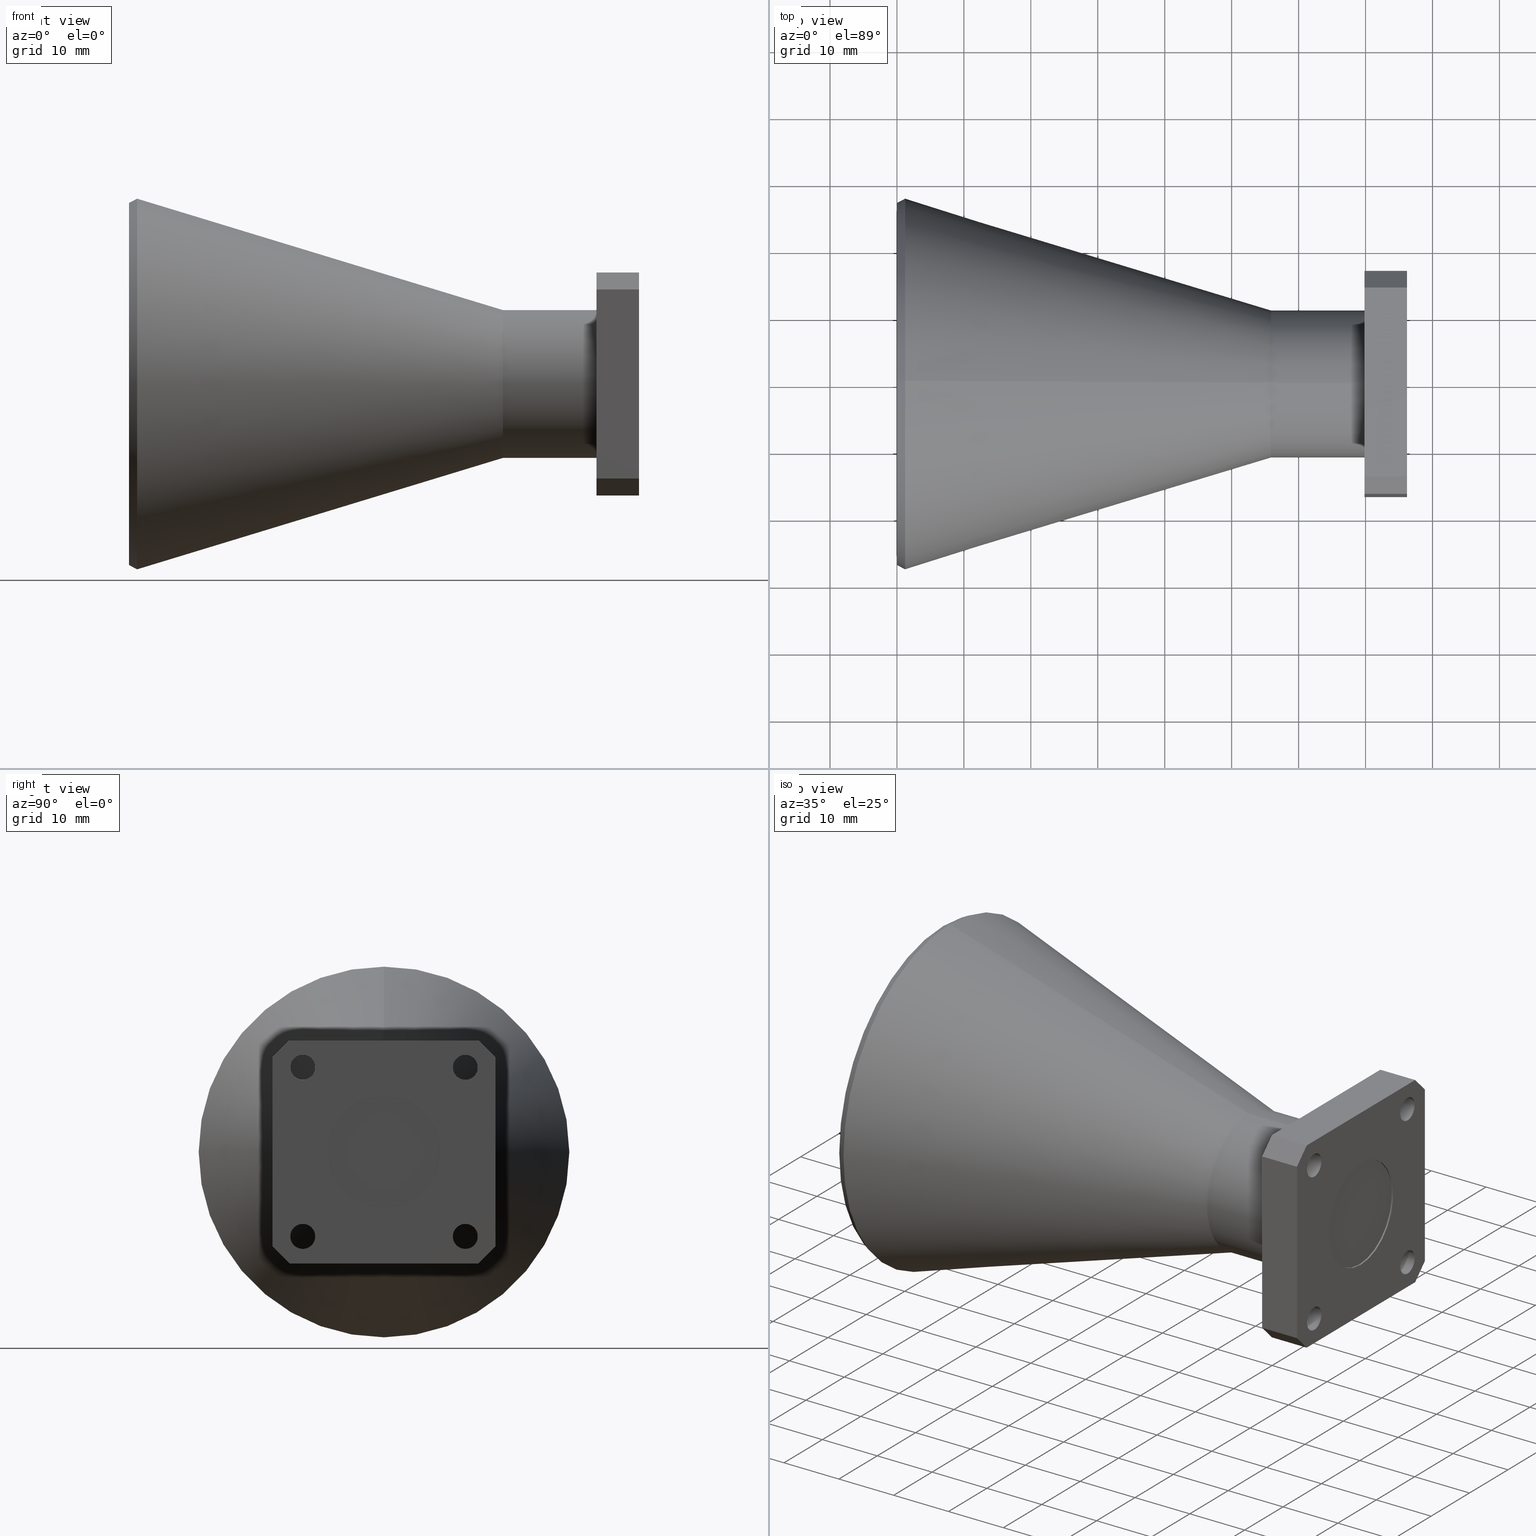
[diagram: canonical four-view strip — front | top / right | iso, engineering-drawing reading convention]
A machine part, canonical four-view strip (front | top / right | iso — engineering-drawing reading convention). The complete STEP part file that produces these views, byte-faithful:
ISO-10303-21;
HEADER;
FILE_DESCRIPTION (( 'STEP AP203' ),
    '1' );
FILE_NAME ('SAC-1626-660-C2.STEP',
    '2019-05-29T18:08:32',
    ( '' ),
    ( '' ),
    'SwSTEP 2.0',
    'SolidWorks 2016',
    '' );
FILE_SCHEMA (( 'CONFIG_CONTROL_DESIGN' ));
ENDSEC;

DATA;
#1 = DIRECTION ( 'NONE',  ( -1.000000000000000000, -0.0000000000000000000, -0.0000000000000000000 ) ) ;
#2 = EDGE_LOOP ( 'NONE', ( #293, #596 ) ) ;
#3 = ORIENTED_EDGE ( 'NONE', *, *, #84, .T. ) ;
#4 = EDGE_CURVE ( 'NONE', #785, #626, #42, .T. ) ;
#5 = DIRECTION ( 'NONE',  ( 0.0000000000000000000, 0.0000000000000000000, -1.000000000000000000 ) ) ;
#6 = LINE ( 'NONE', #218, #909 ) ;
#7 = CIRCLE ( 'NONE', #852, 0.4345345844151258200 ) ;
#8 = DIRECTION ( 'NONE',  ( -1.000000000000000000, -0.0000000000000000000, -0.0000000000000000000 ) ) ;
#9 = EDGE_CURVE ( 'NONE', #823, #893, #748, .T. ) ;
#10 = PLANE ( 'NONE',  #755 ) ;
#11 = AXIS2_PLACEMENT_3D ( 'NONE', #72, #152, #780 ) ;
#12 = VECTOR ( 'NONE', #124, 39.37007874015748100 ) ;
#13 = DIRECTION ( 'NONE',  ( 0.0000000000000000000, 0.0000000000000000000, -1.000000000000000000 ) ) ;
#14 = ORIENTED_EDGE ( 'NONE', *, *, #4, .F. ) ;
#15 = ADVANCED_FACE ( 'NONE', ( #666 ), #454, .T. ) ;
#16 = ORIENTED_EDGE ( 'NONE', *, *, #346, .T. ) ;
#17 = DIRECTION ( 'NONE',  ( -1.000000000000000000, -0.0000000000000000000, -0.0000000000000000000 ) ) ;
#18 = APPROVAL_STATUS ( 'not_yet_approved' ) ;
#19 = FACE_OUTER_BOUND ( 'NONE', #658, .T. ) ;
#20 = DIRECTION ( 'NONE',  ( 0.0000000000000000000, 0.0000000000000000000, 1.000000000000000000 ) ) ;
#21 = LINE ( 'NONE', #595, #364 ) ;
#22 = APPROVAL_ROLE ( '' ) ;
#23 = LINE ( 'NONE', #781, #101 ) ;
#24 = APPLICATION_PROTOCOL_DEFINITION ( 'international standard', 'config_control_design', 1994, #877 ) ;
#25 = VERTEX_POINT ( 'NONE', #79 ) ;
#26 = AXIS2_PLACEMENT_3D ( 'NONE', #833, #275, #775 ) ;
#27 = ORIENTED_EDGE ( 'NONE', *, *, #394, .F. ) ;
#28 = DIRECTION ( 'NONE',  ( 0.0000000000000000000, 0.0000000000000000000, -1.000000000000000000 ) ) ;
#29 = VERTEX_POINT ( 'NONE', #887 ) ;
#30 = PERSON_AND_ORGANIZATION ( #862, #600 ) ;
#31 = CIRCLE ( 'NONE', #671, 0.07349999999999970400 ) ;
#32 = CIRCLE ( 'NONE', #675, 0.3300000000000000200 ) ;
#33 = DIRECTION ( 'NONE',  ( 1.000000000000000000, -0.0000000000000000000, -0.0000000000000000000 ) ) ;
#34 = SECURITY_CLASSIFICATION ( '', '', #98 ) ;
#35 = EDGE_CURVE ( 'NONE', #626, #785, #757, .T. ) ;
#36 = ORIENTED_EDGE ( 'NONE', *, *, #745, .F. ) ;
#37 = ORIENTED_EDGE ( 'NONE', *, *, #448, .T. ) ;
#38 = VECTOR ( 'NONE', #17, 39.37007874015748100 ) ;
#39 = EDGE_CURVE ( 'NONE', #82, #456, #580, .T. ) ;
#40 = AXIS2_PLACEMENT_3D ( 'NONE', #599, #1, #439 ) ;
#41 = DIRECTION ( 'NONE',  ( 0.0000000000000000000, 0.0000000000000000000, -1.000000000000000000 ) ) ;
#42 = CIRCLE ( 'NONE', #426, 0.07349999999999970400 ) ;
#43 = DIRECTION ( 'NONE',  ( -0.0000000000000000000, 0.7071067811865434600, 0.7071067811865516800 ) ) ;
#44 = EDGE_LOOP ( 'NONE', ( #236, #681, #418, #36 ) ) ;
#45 = ADVANCED_FACE ( 'NONE', ( #348 ), #406, .T. ) ;
#46 = ORIENTED_EDGE ( 'NONE', *, *, #287, .F. ) ;
#47 = DATE_AND_TIME ( #413, #459 ) ;
#48 = CARTESIAN_POINT ( 'NONE',  ( 3.000000000000000400, 0.4779999999999999800, -0.4970000000000000000 ) ) ;
#49 = VECTOR ( 'NONE', #746, 39.37007874015748100 ) ;
#50 = EDGE_CURVE ( 'NONE', #822, #217, #213, .T. ) ;
#51 = DIRECTION ( 'NONE',  ( 0.0000000000000000000, 0.0000000000000000000, -1.000000000000000000 ) ) ;
#52 = CONICAL_SURFACE ( 'NONE', #365, 0.4345345844151258200, 0.2956217016742128100 ) ;
#53 = LINE ( 'NONE', #118, #304 ) ;
#54 = ORIENTED_EDGE ( 'NONE', *, *, #306, .F. ) ;
#55 = DIRECTION ( 'NONE',  ( -1.000000000000000000, -0.0000000000000000000, -0.0000000000000000000 ) ) ;
#56 = CARTESIAN_POINT ( 'NONE',  ( 3.000000000000000400, 0.4779999999999999800, 0.4970000000000000000 ) ) ;
#57 = EDGE_CURVE ( 'NONE', #295, #570, #892, .T. ) ;
#58 = ORIENTED_EDGE ( 'NONE', *, *, #234, .T. ) ;
#59 = FACE_OUTER_BOUND ( 'NONE', #443, .T. ) ;
#60 = CARTESIAN_POINT ( 'NONE',  ( 2.750000000000000400, 0.4779999999999999800, 0.5704999999999996700 ) ) ;
#61 = EDGE_CURVE ( 'NONE', #316, #295, #783, .T. ) ;
#62 = CARTESIAN_POINT ( 'NONE',  ( 3.000000000000000400, 0.4779999999999999800, 0.5704999999999994500 ) ) ;
#63 = DIRECTION ( 'NONE',  ( 0.0000000000000000000, 0.0000000000000000000, -1.000000000000000000 ) ) ;
#64 = CARTESIAN_POINT ( 'NONE',  ( 3.000000000000000400, 0.6560000000000000300, 0.5559999999999994900 ) ) ;
#65 = ORIENTED_EDGE ( 'NONE', *, *, #178, .T. ) ;
#66 = VERTEX_POINT ( 'NONE', #891 ) ;
#67 = ORIENTED_EDGE ( 'NONE', *, *, #779, .T. ) ;
#68 = DIRECTION ( 'NONE',  ( -1.000000000000000000, -0.0000000000000000000, -0.0000000000000000000 ) ) ;
#69 = AXIS2_PLACEMENT_3D ( 'NONE', #344, #764, #75 ) ;
#70 = CIRCLE ( 'NONE', #347, 1.064469064256018600 ) ;
#71 = AXIS2_PLACEMENT_3D ( 'NONE', #390, #322, #473 ) ;
#72 = CARTESIAN_POINT ( 'NONE',  ( 2.750000000000000400, -0.4779999999999999800, -0.4970000000000003300 ) ) ;
#73 = LINE ( 'NONE', #303, #694 ) ;
#74 = DIRECTION ( 'NONE',  ( 1.000000000000000000, 0.0000000000000000000, 0.0000000000000000000 ) ) ;
#75 = DIRECTION ( 'NONE',  ( 1.000000000000000000, 0.0000000000000000000, 0.0000000000000000000 ) ) ;
#76 = DIMENSIONAL_EXPONENTS ( 1.000000000000000000, 0.0000000000000000000, 0.0000000000000000000, 0.0000000000000000000, 0.0000000000000000000, 0.0000000000000000000, 0.0000000000000000000 ) ;
#77 = CARTESIAN_POINT ( 'NONE',  ( -3.937007874019685500E-005, -0.5560000000000006000, 0.6560000000000000300 ) ) ;
#78 = AXIS2_PLACEMENT_3D ( 'NONE', #690, #693, #415 ) ;
#79 = CARTESIAN_POINT ( 'NONE',  ( 3.000000000000000400, 4.041334437186265900E-017, -0.3300000000000000200 ) ) ;
#80 = AXIS2_PLACEMENT_3D ( 'NONE', #367, #442, #20 ) ;
#81 = DIRECTION ( 'NONE',  ( -1.000000000000000000, -0.0000000000000000000, -0.0000000000000000000 ) ) ;
#82 = VERTEX_POINT ( 'NONE', #112 ) ;
#83 = EDGE_LOOP ( 'NONE', ( #14, #283, #37, #361 ) ) ;
#84 = EDGE_CURVE ( 'NONE', #256, #29, #195, .T. ) ;
#85 = ORIENTED_EDGE ( 'NONE', *, *, #588, .F. ) ;
#86 = CARTESIAN_POINT ( 'NONE',  ( 2.750000000000000400, 0.4345345844151257700, 0.0000000000000000000 ) ) ;
#87 = FACE_OUTER_BOUND ( 'NONE', #458, .T. ) ;
#88 = APPROVAL_STATUS ( 'not_yet_approved' ) ;
#89 = DIRECTION ( 'NONE',  ( 1.000000000000000000, -0.0000000000000000000, -0.0000000000000000000 ) ) ;
#90 = DIRECTION ( 'NONE',  ( 1.000000000000000000, -0.0000000000000000000, -0.0000000000000000000 ) ) ;
#91 = DATE_TIME_ROLE ( 'creation_date' ) ;
#92 = EDGE_CURVE ( 'NONE', #142, #797, #736, .T. ) ;
#93 = CARTESIAN_POINT ( 'NONE',  ( 3.000000000000000400, 0.4779999999999999800, -0.5704999999999994500 ) ) ;
#94 = AXIS2_PLACEMENT_3D ( 'NONE', #171, #248, #235 ) ;
#95 = FACE_OUTER_BOUND ( 'NONE', #83, .T. ) ;
#96 = DIRECTION ( 'NONE',  ( 1.000000000000000000, -0.0000000000000000000, -0.0000000000000000000 ) ) ;
#97 = ORIENTED_EDGE ( 'NONE', *, *, #641, .F. ) ;
#98 = SECURITY_CLASSIFICATION_LEVEL ( 'unclassified' ) ;
#99 = LINE ( 'NONE', #489, #435 ) ;
#100 = DIRECTION ( 'NONE',  ( 0.0000000000000000000, 0.0000000000000000000, -1.000000000000000000 ) ) ;
#101 = VECTOR ( 'NONE', #345, 39.37007874015748100 ) ;
#102 = CARTESIAN_POINT ( 'NONE',  ( 3.000000000000000400, 0.9323680739955670900, 0.0000000000000000000 ) ) ;
#103 = CARTESIAN_POINT ( 'NONE',  ( 2.750000000000000400, -6.829619984160658000E-017, 0.6560000000000000300 ) ) ;
#104 = CARTESIAN_POINT ( 'NONE',  ( -3.937007874019685500E-005, -0.6560000000000000300, 0.0000000000000000000 ) ) ;
#105 = DIRECTION ( 'NONE',  ( -0.0000000000000000000, 1.000000000000000000, 1.041100607341563800E-016 ) ) ;
#106 = ORIENTED_EDGE ( 'NONE', *, *, #50, .T. ) ;
#107 = ORIENTED_EDGE ( 'NONE', *, *, #782, .F. ) ;
#108 = VERTEX_POINT ( 'NONE', #470 ) ;
#109 = LINE ( 'NONE', #179, #156 ) ;
#110 = EDGE_CURVE ( 'NONE', #351, #738, #358, .T. ) ;
#111 = PRODUCT_DEFINITION_FORMATION_WITH_SPECIFIED_SOURCE ( 'ANY', '', #578, .NOT_KNOWN. ) ;
#112 = CARTESIAN_POINT ( 'NONE',  ( -1.307231950093250900E-017, 1.319212137001727000E-016, 1.064469064256018600 ) ) ;
#113 = CARTESIAN_POINT ( 'NONE',  ( 2.750000000000000400, 0.6560000000000000300, 0.0000000000000000000 ) ) ;
#114 = LINE ( 'NONE', #491, #604 ) ;
#115 = ORIENTED_EDGE ( 'NONE', *, *, #330, .F. ) ;
#116 = DIRECTION ( 'NONE',  ( 0.0000000000000000000, -1.000000000000000000, -1.041100607341563500E-016 ) ) ;
#117 = ORIENTED_EDGE ( 'NONE', *, *, #92, .T. ) ;
#118 = CARTESIAN_POINT ( 'NONE',  ( -3.937007874019685500E-005, -0.6560000000000000300, 0.5559999999999993800 ) ) ;
#119 = ORIENTED_EDGE ( 'NONE', *, *, #239, .T. ) ;
#120 = DIRECTION ( 'NONE',  ( 0.0000000000000000000, 0.0000000000000000000, -1.000000000000000000 ) ) ;
#121 = FACE_OUTER_BOUND ( 'NONE', #512, .T. ) ;
#122 = AXIS2_PLACEMENT_3D ( 'NONE', #284, #925, #354 ) ;
#123 = AXIS2_PLACEMENT_3D ( 'NONE', #145, #509, #850 ) ;
#124 = DIRECTION ( 'NONE',  ( 1.000000000000000000, 0.0000000000000000000, 0.0000000000000000000 ) ) ;
#125 = ORIENTED_EDGE ( 'NONE', *, *, #840, .T. ) ;
#126 = DIRECTION ( 'NONE',  ( 1.000000000000000000, 0.0000000000000000000, 0.0000000000000000000 ) ) ;
#127 = EDGE_CURVE ( 'NONE', #570, #722, #845, .T. ) ;
#128 = ORIENTED_EDGE ( 'NONE', *, *, #160, .T. ) ;
#129 = CC_DESIGN_PERSON_AND_ORGANIZATION_ASSIGNMENT ( #501, #531, ( #111 ) ) ;
#130 = EDGE_LOOP ( 'NONE', ( #107, #229, #619, #215 ) ) ;
#131 = VERTEX_POINT ( 'NONE', #904 ) ;
#132 = CARTESIAN_POINT ( 'NONE',  ( 3.000000000000000400, 0.0000000000000000000, 0.3300000000000000200 ) ) ;
#133 = VECTOR ( 'NONE', #886, 39.37007874015748900 ) ;
#134 = EDGE_CURVE ( 'NONE', #902, #903, #163, .T. ) ;
#135 = PLANE ( 'NONE',  #69 ) ;
#136 = CARTESIAN_POINT ( 'NONE',  ( 3.000000000000000400, -0.4779999999999999800, 0.5704999999999994500 ) ) ;
#137 = DIRECTION ( 'NONE',  ( -1.000000000000000000, -0.0000000000000000000, -0.0000000000000000000 ) ) ;
#138 = ORIENTED_EDGE ( 'NONE', *, *, #888, .F. ) ;
#139 = MANIFOLD_SOLID_BREP ( 'Revolve3', #155 ) ;
#140 = DIRECTION ( 'NONE',  ( 0.0000000000000000000, 0.0000000000000000000, -1.000000000000000000 ) ) ;
#141 = EDGE_CURVE ( 'NONE', #839, #142, #711, .T. ) ;
#142 = VERTEX_POINT ( 'NONE', #409 ) ;
#143 = DIRECTION ( 'NONE',  ( 1.000000000000000000, 0.0000000000000000000, 0.0000000000000000000 ) ) ;
#144 = VERTEX_POINT ( 'NONE', #132 ) ;
#145 = CARTESIAN_POINT ( 'NONE',  ( 3.000000000000000400, -0.4779999999999999800, 0.4970000000000000000 ) ) ;
#146 = PERSON_AND_ORGANIZATION ( #862, #600 ) ;
#147 = CARTESIAN_POINT ( 'NONE',  ( 3.000000000000000400, -0.4779999999999999800, 0.4970000000000000000 ) ) ;
#148 = DIRECTION ( 'NONE',  ( -1.000000000000000000, -0.0000000000000000000, -0.0000000000000000000 ) ) ;
#149 = ADVANCED_FACE ( 'NONE', ( #382 ), #630, .T. ) ;
#150 = VECTOR ( 'NONE', #43, 39.37007874015748100 ) ;
#151 = EDGE_CURVE ( 'NONE', #749, #307, #313, .T. ) ;
#152 = DIRECTION ( 'NONE',  ( 1.000000000000000000, 0.0000000000000000000, 0.0000000000000000000 ) ) ;
#153 = VERTEX_POINT ( 'NONE', #633 ) ;
#154 = VERTEX_POINT ( 'NONE', #202 ) ;
#155 = CLOSED_SHELL ( 'NONE', ( #504, #165, #298, #628, #15, #642, #788, #452, #331, #591, #227, #514, #407, #563, #581, #927, #216, #302, #247, #149, #280, #412, #45, #849, #799, #521, #290, #193 ) ) ;
#156 = VECTOR ( 'NONE', #678, 39.37007874015748100 ) ;
#157 = DIRECTION ( 'NONE',  ( 1.000000000000000000, -0.0000000000000000000, -0.0000000000000000000 ) ) ;
#158 = CIRCLE ( 'NONE', #899, 0.07349999999999949600 ) ;
#159 = DIRECTION ( 'NONE',  ( -1.000000000000000000, 0.0000000000000000000, 0.0000000000000000000 ) ) ;
#160 = EDGE_CURVE ( 'NONE', #321, #108, #700, .T. ) ;
#161 = AXIS2_PLACEMENT_3D ( 'NONE', #517, #662, #793 ) ;
#162 = CARTESIAN_POINT ( 'NONE',  ( 0.0000000000000000000, 4.041334437186265900E-017, -0.3300000000000000200 ) ) ;
#163 = CIRCLE ( 'NONE', #854, 0.07349999999999970400 ) ;
#164 =( NAMED_UNIT ( * ) SI_UNIT ( $, .STERADIAN. ) SOLID_ANGLE_UNIT ( ) );
#165 = ADVANCED_FACE ( 'NONE', ( #95 ), #484, .F. ) ;
#166 = ORIENTED_EDGE ( 'NONE', *, *, #482, .F. ) ;
#167 = ORIENTED_EDGE ( 'NONE', *, *, #921, .T. ) ;
#168 = CALENDAR_DATE ( 2019, 29, 5 ) ;
#169 = CYLINDRICAL_SURFACE ( 'NONE', #366, 0.07349999999999970400 ) ;
#170 = CARTESIAN_POINT ( 'NONE',  ( 3.000000000000000400, -0.5560000000000006000, 0.6560000000000000300 ) ) ;
#171 = CARTESIAN_POINT ( 'NONE',  ( 2.990000000000000200, 0.0000000000000000000, 0.0000000000000000000 ) ) ;
#172 = DIRECTION ( 'NONE',  ( -1.000000000000000000, -0.0000000000000000000, -0.0000000000000000000 ) ) ;
#173 = AXIS2_PLACEMENT_3D ( 'NONE', #865, #654, #13 ) ;
#174 = ORIENTED_EDGE ( 'NONE', *, *, #92, .F. ) ;
#175 = ORIENTED_EDGE ( 'NONE', *, *, #39, .F. ) ;
#176 = EDGE_LOOP ( 'NONE', ( #895, #97, #208, #907 ) ) ;
#177 = CARTESIAN_POINT ( 'NONE',  ( 2.750000000000000400, -0.5560000000000006000, 0.6560000000000000300 ) ) ;
#178 = EDGE_CURVE ( 'NONE', #727, #295, #392, .T. ) ;
#179 = CARTESIAN_POINT ( 'NONE',  ( 3.000000000000000400, -0.4779999999999999800, 0.4235000000000002700 ) ) ;
#180 = VECTOR ( 'NONE', #618, 39.37007874015748100 ) ;
#181 = CARTESIAN_POINT ( 'NONE',  ( 0.0000000000000000000, 0.0000000000000000000, 0.3300000000000000200 ) ) ;
#182 = LINE ( 'NONE', #494, #791 ) ;
#183 = CC_DESIGN_PERSON_AND_ORGANIZATION_ASSIGNMENT ( #219, #378, ( #111 ) ) ;
#184 = DIRECTION ( 'NONE',  ( 0.0000000000000000000, 0.7071067811865476800, -0.7071067811865472400 ) ) ;
#185 = CARTESIAN_POINT ( 'NONE',  ( 2.750000000000000400, 5.321513879228091000E-017, -0.4345345844151257700 ) ) ;
#186 = EDGE_CURVE ( 'NONE', #395, #467, #568, .T. ) ;
#187 = LINE ( 'NONE', #483, #917 ) ;
#188 = CARTESIAN_POINT ( 'NONE',  ( 3.000000000000000400, 0.4779999999999999800, 0.4970000000000000000 ) ) ;
#189 = ORIENTED_EDGE ( 'NONE', *, *, #151, .F. ) ;
#190 = APPROVAL_DATE_TIME ( #47, #756 ) ;
#191 = VECTOR ( 'NONE', #28, 39.37007874015748100 ) ;
#192 = EDGE_CURVE ( 'NONE', #217, #305, #187, .T. ) ;
#193 = ADVANCED_FACE ( 'NONE', ( #453 ), #766, .F. ) ;
#194 = CARTESIAN_POINT ( 'NONE',  ( 2.750000000000000400, 0.4779999999999999800, 0.4970000000000000000 ) ) ;
#195 = CIRCLE ( 'NONE', #686, 0.07349999999999949600 ) ;
#196 = ORIENTED_EDGE ( 'NONE', *, *, #840, .F. ) ;
#197 = CARTESIAN_POINT ( 'NONE',  ( 2.750000000000000400, 0.5559999999999993800, 0.6560000000000000300 ) ) ;
#198 = ORIENTED_EDGE ( 'NONE', *, *, #597, .T. ) ;
#199 = DIRECTION ( 'NONE',  ( 0.0000000000000000000, 0.0000000000000000000, 1.000000000000000000 ) ) ;
#200 = VECTOR ( 'NONE', #613, 39.37007874015748100 ) ;
#201 = EDGE_CURVE ( 'NONE', #153, #797, #320, .T. ) ;
#202 = CARTESIAN_POINT ( 'NONE',  ( 3.000000000000000400, -0.5560000000000003800, 0.6560000000000000300 ) ) ;
#203 = CARTESIAN_POINT ( 'NONE',  ( 3.000000000000000400, 0.4779999999999999800, 0.4970000000000000000 ) ) ;
#204 = EDGE_CURVE ( 'NONE', #316, #839, #53, .T. ) ;
#205 = VECTOR ( 'NONE', #184, 39.37007874015748900 ) ;
#206 = ORIENTED_EDGE ( 'NONE', *, *, #656, .F. ) ;
#207 = AXIS2_PLACEMENT_3D ( 'NONE', #276, #844, #291 ) ;
#208 = ORIENTED_EDGE ( 'NONE', *, *, #534, .T. ) ;
#209 = DIRECTION ( 'NONE',  ( 0.0000000000000000000, -0.7071067811865476800, 0.7071067811865472400 ) ) ;
#210 = PERSON_AND_ORGANIZATION ( #862, #600 ) ;
#211 = VECTOR ( 'NONE', #312, 39.37007874015748100 ) ;
#212 = CARTESIAN_POINT ( 'NONE',  ( 0.0000000000000000000, 0.0000000000000000000, 0.0000000000000000000 ) ) ;
#213 = LINE ( 'NONE', #113, #370 ) ;
#214 = DIRECTION ( 'NONE',  ( 0.0000000000000000000, 0.0000000000000000000, 1.000000000000000000 ) ) ;
#215 = ORIENTED_EDGE ( 'NONE', *, *, #416, .T. ) ;
#216 = ADVANCED_FACE ( 'NONE', ( #381 ), #257, .T. ) ;
#217 = VERTEX_POINT ( 'NONE', #342 ) ;
#218 = CARTESIAN_POINT ( 'NONE',  ( 2.200000000000000200, 5.321513879228091600E-017, -0.4345345844151258200 ) ) ;
#219 = PERSON_AND_ORGANIZATION ( #862, #600 ) ;
#220 = CYLINDRICAL_SURFACE ( 'NONE', #623, 0.3300000000000000200 ) ;
#221 = CARTESIAN_POINT ( 'NONE',  ( 0.0000000000000000000, 0.0000000000000000000, 0.4345345844151258200 ) ) ;
#222 = LINE ( 'NONE', #683, #49 ) ;
#223 = AXIS2_PLACEMENT_3D ( 'NONE', #471, #816, #399 ) ;
#224 = CARTESIAN_POINT ( 'NONE',  ( 3.000000000000000400, 0.4779999999999999800, -0.4970000000000000000 ) ) ;
#225 = CC_DESIGN_SECURITY_CLASSIFICATION ( #34, ( #111 ) ) ;
#226 = CARTESIAN_POINT ( 'NONE',  ( -3.937007874019685500E-005, 0.6560000000000000300, 0.5559999999999994900 ) ) ;
#227 = ADVANCED_FACE ( 'NONE', ( #334 ), #52, .T. ) ;
#228 = CARTESIAN_POINT ( 'NONE',  ( 3.000000000000000400, -0.4779999999999999800, -0.5704999999999997900 ) ) ;
#229 = ORIENTED_EDGE ( 'NONE', *, *, #35, .F. ) ;
#230 = ORIENTED_EDGE ( 'NONE', *, *, #57, .T. ) ;
#231 = CARTESIAN_POINT ( 'NONE',  ( -1.307231950093250900E-017, 0.0000000000000000000, -1.064469064256018600 ) ) ;
#232 = FACE_BOUND ( 'NONE', #314, .T. ) ;
#233 = CYLINDRICAL_SURFACE ( 'NONE', #254, 0.07349999999999970400 ) ;
#234 = EDGE_CURVE ( 'NONE', #722, #749, #114, .T. ) ;
#235 = DIRECTION ( 'NONE',  ( 0.0000000000000000000, 0.0000000000000000000, 1.000000000000000000 ) ) ;
#236 = ORIENTED_EDGE ( 'NONE', *, *, #141, .F. ) ;
#237 = PERSON_AND_ORGANIZATION_ROLE ( 'classification_officer' ) ;
#238 = EDGE_LOOP ( 'NONE', ( #338, #616, #918, #384 ) ) ;
#239 = EDGE_CURVE ( 'NONE', #29, #256, #440, .T. ) ;
#240 = CARTESIAN_POINT ( 'NONE',  ( 3.000000000000000400, 0.4779999999999999800, 0.5704999999999996700 ) ) ;
#241 = ORIENTED_EDGE ( 'NONE', *, *, #127, .T. ) ;
#242 = PERSON_AND_ORGANIZATION ( #862, #600 ) ;
#243 = CIRCLE ( 'NONE', #11, 0.07349999999999970400 ) ;
#244 = DIRECTION ( 'NONE',  ( 0.0000000000000000000, 0.0000000000000000000, -1.000000000000000000 ) ) ;
#245 =( NAMED_UNIT ( * ) PLANE_ANGLE_UNIT ( ) SI_UNIT ( $, .RADIAN. ) );
#246 = CARTESIAN_POINT ( 'NONE',  ( 0.0000000000000000000, 0.0000000000000000000, 0.0000000000000000000 ) ) ;
#247 = ADVANCED_FACE ( 'NONE', ( #687 ), #135, .F. ) ;
#248 = DIRECTION ( 'NONE',  ( 1.000000000000000000, 0.0000000000000000000, 0.0000000000000000000 ) ) ;
#249 = ORIENTED_EDGE ( 'NONE', *, *, #830, .T. ) ;
#250 = ORIENTED_EDGE ( 'NONE', *, *, #761, .F. ) ;
#251 = EDGE_CURVE ( 'NONE', #635, #363, #357, .T. ) ;
#252 = FACE_BOUND ( 'NONE', #634, .T. ) ;
#253 = CARTESIAN_POINT ( 'NONE',  ( 3.000000000000000400, -0.4779999999999999800, 0.4970000000000000000 ) ) ;
#254 = AXIS2_PLACEMENT_3D ( 'NONE', #369, #90, #100 ) ;
#255 = DIRECTION ( 'NONE',  ( 1.000000000000000000, 0.0000000000000000000, 0.0000000000000000000 ) ) ;
#256 = VERTEX_POINT ( 'NONE', #62 ) ;
#257 = PLANE ( 'NONE',  #464 ) ;
#258 = ORIENTED_EDGE ( 'NONE', *, *, #110, .T. ) ;
#259 = CARTESIAN_POINT ( 'NONE',  ( 2.750000000000000400, -0.6560000000000000300, -0.5559999999999994900 ) ) ;
#260 = ORIENTED_EDGE ( 'NONE', *, *, #127, .F. ) ;
#261 = PERSON_AND_ORGANIZATION ( #862, #600 ) ;
#262 = DIRECTION ( 'NONE',  ( 1.000000000000000000, 0.0000000000000000000, 0.0000000000000000000 ) ) ;
#263 = LINE ( 'NONE', #555, #789 ) ;
#264 = CARTESIAN_POINT ( 'NONE',  ( 3.000000000000000400, 0.0000000000000000000, 0.0000000000000000000 ) ) ;
#265 = DIRECTION ( 'NONE',  ( 1.000000000000000000, 0.0000000000000000000, 0.0000000000000000000 ) ) ;
#266 = EDGE_CURVE ( 'NONE', #25, #144, #508, .T. ) ;
#267 = PRODUCT_RELATED_PRODUCT_CATEGORY ( 'detail', '', ( #578 ) ) ;
#268 = ORIENTED_EDGE ( 'NONE', *, *, #57, .F. ) ;
#269 = ORIENTED_EDGE ( 'NONE', *, *, #416, .F. ) ;
#270 = ORIENTED_EDGE ( 'NONE', *, *, #707, .F. ) ;
#271 = DIRECTION ( 'NONE',  ( 0.8824380394644862900, 5.761089297311256100E-017, 0.4704286412476113000 ) ) ;
#272 = CALENDAR_DATE ( 2019, 29, 5 ) ;
#273 = DIRECTION ( 'NONE',  ( 0.0000000000000000000, -1.000000000000000000, -0.0000000000000000000 ) ) ;
#274 = CYLINDRICAL_SURFACE ( 'NONE', #161, 0.3300000000000000200 ) ;
#275 = DIRECTION ( 'NONE',  ( -1.000000000000000000, -0.0000000000000000000, -0.0000000000000000000 ) ) ;
#276 = CARTESIAN_POINT ( 'NONE',  ( 2.200000000000000200, 0.0000000000000000000, 0.0000000000000000000 ) ) ;
#277 = CARTESIAN_POINT ( 'NONE',  ( 2.750000000000000400, 0.0000000000000000000, 0.0000000000000000000 ) ) ;
#278 = EDGE_CURVE ( 'NONE', #605, #721, #404, .T. ) ;
#279 = ORIENTED_EDGE ( 'NONE', *, *, #39, .T. ) ;
#280 = ADVANCED_FACE ( 'NONE', ( #472 ), #349, .F. ) ;
#281 = CARTESIAN_POINT ( 'NONE',  ( 2.750000000000000400, 0.4779999999999999800, 0.4235000000000002700 ) ) ;
#282 = EDGE_LOOP ( 'NONE', ( #396, #812 ) ) ;
#283 = ORIENTED_EDGE ( 'NONE', *, *, #782, .T. ) ;
#284 = CARTESIAN_POINT ( 'NONE',  ( 2.750000000000000400, 0.4779999999999999800, 0.4970000000000000000 ) ) ;
#285 = APPROVAL_PERSON_ORGANIZATION ( #242, #756, #602 ) ;
#286 = LENGTH_MEASURE_WITH_UNIT ( LENGTH_MEASURE( 0.02539999999999999900 ), #533 );
#287 = EDGE_CURVE ( 'NONE', #738, #351, #523, .T. ) ;
#288 = DIRECTION ( 'NONE',  ( 0.0000000000000000000, 0.0000000000000000000, -1.000000000000000000 ) ) ;
#289 = DIRECTION ( 'NONE',  ( 0.0000000000000000000, 0.0000000000000000000, 1.000000000000000000 ) ) ;
#290 = ADVANCED_FACE ( 'NONE', ( #717 ), #437, .F. ) ;
#291 = DIRECTION ( 'NONE',  ( 0.0000000000000000000, 0.0000000000000000000, 1.000000000000000000 ) ) ;
#292 = CARTESIAN_POINT ( 'NONE',  ( 2.750000000000000400, 0.0000000000000000000, 0.4345345844151257700 ) ) ;
#293 = ORIENTED_EDGE ( 'NONE', *, *, #134, .T. ) ;
#294 = ORIENTED_EDGE ( 'NONE', *, *, #656, .T. ) ;
#295 = VERTEX_POINT ( 'NONE', #709 ) ;
#296 = DIRECTION ( 'NONE',  ( 1.000000000000000000, -0.0000000000000000000, -0.0000000000000000000 ) ) ;
#297 = VECTOR ( 'NONE', #842, 39.37007874015748100 ) ;
#298 = ADVANCED_FACE ( 'NONE', ( #121 ), #651, .F. ) ;
#299 = VECTOR ( 'NONE', #8, 39.37007874015748100 ) ;
#300 = EDGE_CURVE ( 'NONE', #822, #749, #23, .T. ) ;
#301 = PRODUCT_DEFINITION ( 'UNKNOWN', '', #111, #524 ) ;
#302 = ADVANCED_FACE ( 'NONE', ( #530 ), #714, .F. ) ;
#303 = CARTESIAN_POINT ( 'NONE',  ( 3.000000000000000400, 0.4779999999999999800, -0.5704999999999996700 ) ) ;
#304 = VECTOR ( 'NONE', #475, 39.37007874015748100 ) ;
#305 = VERTEX_POINT ( 'NONE', #64 ) ;
#306 = EDGE_CURVE ( 'NONE', #305, #153, #696, .T. ) ;
#307 = VERTEX_POINT ( 'NONE', #841 ) ;
#308 = PERSON_AND_ORGANIZATION_ROLE ( 'design_owner' ) ;
#309 = SHAPE_DEFINITION_REPRESENTATION ( #332, #502 ) ;
#310 = DIRECTION ( 'NONE',  ( 1.000000000000000000, 0.0000000000000000000, 0.0000000000000000000 ) ) ;
#311 = CARTESIAN_POINT ( 'NONE',  ( 2.750000000000000400, -0.4779999999999999800, -0.5705000000000000100 ) ) ;
#312 = DIRECTION ( 'NONE',  ( 1.000000000000000000, -0.0000000000000000000, -0.0000000000000000000 ) ) ;
#313 = LINE ( 'NONE', #897, #677 ) ;
#314 = EDGE_LOOP ( 'NONE', ( #593, #740 ) ) ;
#315 = AXIS2_PLACEMENT_3D ( 'NONE', #194, #265, #758 ) ;
#316 = VERTEX_POINT ( 'NONE', #577 ) ;
#317 = ORIENTED_EDGE ( 'NONE', *, *, #733, .F. ) ;
#318 = LINE ( 'NONE', #697, #180 ) ;
#319 = PLANE ( 'NONE',  #71 ) ;
#320 = LINE ( 'NONE', #197, #391 ) ;
#321 = VERTEX_POINT ( 'NONE', #786 ) ;
#322 = DIRECTION ( 'NONE',  ( 0.0000000000000000000, -1.041100607341563800E-016, 1.000000000000000000 ) ) ;
#323 = ORIENTED_EDGE ( 'NONE', *, *, #186, .T. ) ;
#324 = DIRECTION ( 'NONE',  ( 1.000000000000000000, 0.0000000000000000000, 0.0000000000000000000 ) ) ;
#325 = ORIENTED_EDGE ( 'NONE', *, *, #278, .T. ) ;
#326 = EDGE_CURVE ( 'NONE', #893, #823, #910, .T. ) ;
#327 = DIRECTION ( 'NONE',  ( 0.0000000000000000000, 0.0000000000000000000, -1.000000000000000000 ) ) ;
#328 = AXIS2_PLACEMENT_3D ( 'NONE', #226, #802, #159 ) ;
#329 = PLANE ( 'NONE',  #660 ) ;
#330 = EDGE_CURVE ( 'NONE', #797, #217, #182, .T. ) ;
#331 = ADVANCED_FACE ( 'NONE', ( #516 ), #220, .F. ) ;
#332 = PRODUCT_DEFINITION_SHAPE ( 'NONE', 'NONE',  #301 ) ;
#333 = AXIS2_PLACEMENT_3D ( 'NONE', #445, #587, #652 ) ;
#334 = FACE_OUTER_BOUND ( 'NONE', #657, .T. ) ;
#335 = EDGE_LOOP ( 'NONE', ( #270, #360, #726, #429 ) ) ;
#336 = EDGE_LOOP ( 'NONE', ( #444, #689, #539, #65 ) ) ;
#337 = EDGE_CURVE ( 'NONE', #626, #510, #73, .T. ) ;
#338 = ORIENTED_EDGE ( 'NONE', *, *, #795, .F. ) ;
#339 = VECTOR ( 'NONE', #451, 39.37007874015748900 ) ;
#340 = DIRECTION ( 'NONE',  ( 0.0000000000000000000, 0.0000000000000000000, -1.000000000000000000 ) ) ;
#341 = LINE ( 'NONE', #162, #38 ) ;
#342 = CARTESIAN_POINT ( 'NONE',  ( 2.750000000000000400, 0.6560000000000000300, 0.5559999999999994900 ) ) ;
#343 = DIRECTION ( 'NONE',  ( 0.0000000000000000000, -1.000000000000000000, -1.041100607341563500E-016 ) ) ;
#344 = CARTESIAN_POINT ( 'NONE',  ( -3.937007874019685500E-005, -0.5560000000000006000, 0.6560000000000000300 ) ) ;
#345 = DIRECTION ( 'NONE',  ( 0.0000000000000000000, -0.7071067811865434600, -0.7071067811865516800 ) ) ;
#346 = EDGE_CURVE ( 'NONE', #467, #395, #762, .T. ) ;
#347 = AXIS2_PLACEMENT_3D ( 'NONE', #832, #137, #505 ) ;
#348 = FACE_OUTER_BOUND ( 'NONE', #335, .T. ) ;
#349 = PLANE ( 'NONE',  #436 ) ;
#350 = ORIENTED_EDGE ( 'NONE', *, *, #234, .F. ) ;
#351 = VERTEX_POINT ( 'NONE', #60 ) ;
#352 = CARTESIAN_POINT ( 'NONE',  ( 3.000000000000000400, 0.4779999999999999800, -0.4235000000000002700 ) ) ;
#353 = APPROVAL_PERSON_ORGANIZATION ( #30, #728, #665 ) ;
#354 = DIRECTION ( 'NONE',  ( 0.0000000000000000000, 0.0000000000000000000, -1.000000000000000000 ) ) ;
#355 = VECTOR ( 'NONE', #96, 39.37007874015748100 ) ;
#356 = DIRECTION ( 'NONE',  ( 1.000000000000000000, -0.0000000000000000000, -0.0000000000000000000 ) ) ;
#357 = CIRCLE ( 'NONE', #455, 0.4345345844151257700 ) ;
#358 = CIRCLE ( 'NONE', #315, 0.07349999999999970400 ) ;
#359 = DIRECTION ( 'NONE',  ( -0.9566212039728618800, 3.567820336118366500E-017, -0.2913346393917349800 ) ) ;
#360 = ORIENTED_EDGE ( 'NONE', *, *, #719, .F. ) ;
#361 = ORIENTED_EDGE ( 'NONE', *, *, #337, .F. ) ;
#362 = CARTESIAN_POINT ( 'NONE',  ( 3.000000000000000400, 0.4779999999999999800, -0.4970000000000000000 ) ) ;
#363 = VERTEX_POINT ( 'NONE', #292 ) ;
#364 = VECTOR ( 'NONE', #863, 39.37007874015748100 ) ;
#365 = AXIS2_PLACEMENT_3D ( 'NONE', #554, #55, #914 ) ;
#366 = AXIS2_PLACEMENT_3D ( 'NONE', #424, #157, #794 ) ;
#367 = CARTESIAN_POINT ( 'NONE',  ( 2.990000000000000200, 0.0000000000000000000, 0.0000000000000000000 ) ) ;
#368 = DIRECTION ( 'NONE',  ( 0.0000000000000000000, 0.0000000000000000000, -1.000000000000000000 ) ) ;
#369 = CARTESIAN_POINT ( 'NONE',  ( 3.000000000000000400, 0.4779999999999999800, 0.4970000000000000000 ) ) ;
#370 = VECTOR ( 'NONE', #544, 39.37007874015748100 ) ;
#371 = ORIENTED_EDGE ( 'NONE', *, *, #745, .T. ) ;
#372 = EDGE_LOOP ( 'NONE', ( #138, #46, #928, #119 ) ) ;
#373 = CARTESIAN_POINT ( 'NONE',  ( 0.0000000000000000000, 0.0000000000000000000, -1.064469064256018600 ) ) ;
#374 = ORIENTED_EDGE ( 'NONE', *, *, #326, .F. ) ;
#375 = LINE ( 'NONE', #401, #562 ) ;
#376 = APPROVAL_PERSON_ORGANIZATION ( #896, #855, #22 ) ;
#377 = LINE ( 'NONE', #240, #200 ) ;
#378 = PERSON_AND_ORGANIZATION_ROLE ( 'creator' ) ;
#379 = EDGE_CURVE ( 'NONE', #879, #131, #31, .T. ) ;
#380 = DIRECTION ( 'NONE',  ( 0.0000000000000000000, 0.0000000000000000000, 1.000000000000000000 ) ) ;
#381 = FACE_OUTER_BOUND ( 'NONE', #647, .T. ) ;
#382 = FACE_OUTER_BOUND ( 'NONE', #556, .T. ) ;
#383 = DIRECTION ( 'NONE',  ( 0.0000000000000000000, 0.0000000000000000000, -1.000000000000000000 ) ) ;
#384 = ORIENTED_EDGE ( 'NONE', *, *, #9, .T. ) ;
#385 = ORIENTED_EDGE ( 'NONE', *, *, #707, .T. ) ;
#386 = VECTOR ( 'NONE', #790, 39.37007874015748100 ) ;
#387 = DIRECTION ( 'NONE',  ( -0.0000000000000000000, 0.0000000000000000000, 1.000000000000000000 ) ) ;
#388 = DIRECTION ( 'NONE',  ( -1.000000000000000000, 0.0000000000000000000, 0.0000000000000000000 ) ) ;
#389 = CARTESIAN_POINT ( 'NONE',  ( 2.750000000000000400, 0.4779999999999999800, -0.5704999999999996700 ) ) ;
#390 = CARTESIAN_POINT ( 'NONE',  ( -3.937007874019685500E-005, 6.829619984160658000E-017, -0.6560000000000000300 ) ) ;
#391 = VECTOR ( 'NONE', #402, 39.37007874015748100 ) ;
#392 = LINE ( 'NONE', #557, #12 ) ;
#393 = ORIENTED_EDGE ( 'NONE', *, *, #306, .T. ) ;
#394 = EDGE_CURVE ( 'NONE', #363, #108, #873, .T. ) ;
#395 = VERTEX_POINT ( 'NONE', #589 ) ;
#396 = ORIENTED_EDGE ( 'NONE', *, *, #564, .T. ) ;
#397 = AXIS2_PLACEMENT_3D ( 'NONE', #104, #819, #383 ) ;
#398 = DATE_AND_TIME ( #272, #432 ) ;
#399 = DIRECTION ( 'NONE',  ( 0.0000000000000000000, 0.0000000000000000000, -1.000000000000000000 ) ) ;
#400 = FACE_BOUND ( 'NONE', #831, .T. ) ;
#401 = CARTESIAN_POINT ( 'NONE',  ( 3.000000000000000400, 6.829619984160658000E-017, -0.6560000000000000300 ) ) ;
#402 = DIRECTION ( 'NONE',  ( -1.000000000000000000, 0.0000000000000000000, 0.0000000000000000000 ) ) ;
#403 = EDGE_CURVE ( 'NONE', #108, #321, #7, .T. ) ;
#404 = CIRCLE ( 'NONE', #735, 0.07349999999999949600 ) ;
#405 = CARTESIAN_POINT ( 'NONE',  ( -3.937007874019685500E-005, -0.6560000000000000300, -0.5559999999999994900 ) ) ;
#406 = CONICAL_SURFACE ( 'NONE', #818, 1.064469064256018600, 0.4897764617232292500 ) ;
#407 = ADVANCED_FACE ( 'NONE', ( #778, #601, #861, #573, #911, #637 ), #10, .F. ) ;
#408 = EDGE_LOOP ( 'NONE', ( #498, #67, #323, #486 ) ) ;
#409 = CARTESIAN_POINT ( 'NONE',  ( 2.750000000000000400, -0.5560000000000003800, 0.6560000000000000300 ) ) ;
#410 = EDGE_LOOP ( 'NONE', ( #167, #419, #106, #526 ) ) ;
#411 = AXIS2_PLACEMENT_3D ( 'NONE', #506, #567, #916 ) ;
#412 = ADVANCED_FACE ( 'NONE', ( #543 ), #511, .T. ) ;
#413 = CALENDAR_DATE ( 2019, 29, 5 ) ;
#414 = LINE ( 'NONE', #644, #851 ) ;
#415 = DIRECTION ( 'NONE',  ( -0.0000000000000000000, 0.0000000000000000000, 1.000000000000000000 ) ) ;
#416 = EDGE_CURVE ( 'NONE', #510, #759, #158, .T. ) ;
#417 = DIRECTION ( 'NONE',  ( 0.0000000000000000000, -1.041100607341563800E-016, 1.000000000000000000 ) ) ;
#418 = ORIENTED_EDGE ( 'NONE', *, *, #860, .F. ) ;
#419 = ORIENTED_EDGE ( 'NONE', *, *, #614, .T. ) ;
#420 = EDGE_LOOP ( 'NONE', ( #753, #317 ) ) ;
#421 = CARTESIAN_POINT ( 'NONE',  ( 3.000000000000000400, 0.6560000000000000300, 0.5559999999999994900 ) ) ;
#422 = LINE ( 'NONE', #181, #447 ) ;
#423 = FACE_OUTER_BOUND ( 'NONE', #692, .T. ) ;
#424 = CARTESIAN_POINT ( 'NONE',  ( 3.000000000000000400, -0.4779999999999999800, -0.4970000000000003300 ) ) ;
#425 = CARTESIAN_POINT ( 'NONE',  ( 3.000000000000000400, -0.4779999999999999800, -0.4970000000000003300 ) ) ;
#426 = AXIS2_PLACEMENT_3D ( 'NONE', #773, #143, #340 ) ;
#427 = AXIS2_PLACEMENT_3D ( 'NONE', #607, #172, #732 ) ;
#428 = ORIENTED_EDGE ( 'NONE', *, *, #186, .F. ) ;
#429 = ORIENTED_EDGE ( 'NONE', *, *, #346, .F. ) ;
#430 = DIRECTION ( 'NONE',  ( 1.000000000000000000, 0.0000000000000000000, 0.0000000000000000000 ) ) ;
#431 = ORIENTED_EDGE ( 'NONE', *, *, #448, .F. ) ;
#432 = LOCAL_TIME ( 11, 8, 32.00000000000000000, #574 ) ;
#433 = AXIS2_PLACEMENT_3D ( 'NONE', #699, #324, #826 ) ;
#434 = CARTESIAN_POINT ( 'NONE',  ( 0.04783106019864286100, 0.0000000000000000000, 1.089967852445538700 ) ) ;
#435 = VECTOR ( 'NONE', #271, 39.37007874015748900 ) ;
#436 = AXIS2_PLACEMENT_3D ( 'NONE', #492, #579, #575 ) ;
#437 = CYLINDRICAL_SURFACE ( 'NONE', #820, 0.07349999999999970400 ) ;
#438 = CARTESIAN_POINT ( 'NONE',  ( 2.750000000000000400, 0.5560000000000003800, -0.6560000000000000300 ) ) ;
#439 = DIRECTION ( 'NONE',  ( 0.0000000000000000000, 0.0000000000000000000, 1.000000000000000000 ) ) ;
#440 = CIRCLE ( 'NONE', #515, 0.07349999999999949600 ) ;
#441 = DIRECTION ( 'NONE',  ( 1.000000000000000000, -0.0000000000000000000, -0.0000000000000000000 ) ) ;
#442 = DIRECTION ( 'NONE',  ( 1.000000000000000000, 0.0000000000000000000, 0.0000000000000000000 ) ) ;
#443 = EDGE_LOOP ( 'NONE', ( #720, #241, #58, #800 ) ) ;
#444 = ORIENTED_EDGE ( 'NONE', *, *, #61, .F. ) ;
#445 = CARTESIAN_POINT ( 'NONE',  ( 0.04783106019864259000, 0.0000000000000000000, 0.0000000000000000000 ) ) ;
#446 = FACE_OUTER_BOUND ( 'NONE', #919, .T. ) ;
#447 = VECTOR ( 'NONE', #881, 39.37007874015748100 ) ;
#448 = EDGE_CURVE ( 'NONE', #759, #510, #638, .T. ) ;
#449 = MECHANICAL_CONTEXT ( 'NONE', #805, 'mechanical' ) ;
#450 = CC_DESIGN_APPROVAL ( #855, ( #301 ) ) ;
#451 = DIRECTION ( 'NONE',  ( 0.8824380394644862900, 0.0000000000000000000, -0.4704286412476113000 ) ) ;
#452 = ADVANCED_FACE ( 'NONE', ( #446 ), #274, .F. ) ;
#453 = FACE_OUTER_BOUND ( 'NONE', #701, .T. ) ;
#454 = CONICAL_SURFACE ( 'NONE', #529, 1.064469064256018600, 0.4897764617232292500 ) ;
#455 = AXIS2_PLACEMENT_3D ( 'NONE', #277, #148, #650 ) ;
#456 = VERTEX_POINT ( 'NONE', #231 ) ;
#457 = PLANE ( 'NONE',  #397 ) ;
#458 = EDGE_LOOP ( 'NONE', ( #294, #774, #540, #230, #85, #249, #871, #393 ) ) ;
#459 = LOCAL_TIME ( 11, 8, 32.00000000000000000, #621 ) ;
#460 = CYLINDRICAL_SURFACE ( 'NONE', #26, 0.4345345844151258200 ) ;
#461 = DIRECTION ( 'NONE',  ( 1.000000000000000000, 0.0000000000000000000, 0.0000000000000000000 ) ) ;
#462 = DATE_TIME_ROLE ( 'classification_date' ) ;
#463 = CARTESIAN_POINT ( 'NONE',  ( 2.750000000000000400, -0.4779999999999999800, 0.4970000000000000000 ) ) ;
#464 = AXIS2_PLACEMENT_3D ( 'NONE', #767, #417, #770 ) ;
#465 = ORIENTED_EDGE ( 'NONE', *, *, #251, .T. ) ;
#466 = ORIENTED_EDGE ( 'NONE', *, *, #4, .T. ) ;
#467 = VERTEX_POINT ( 'NONE', #434 ) ;
#468 = CIRCLE ( 'NONE', #869, 0.07349999999999970400 ) ;
#469 = LOCAL_TIME ( 11, 8, 32.00000000000000000, #787 ) ;
#470 = CARTESIAN_POINT ( 'NONE',  ( 2.200000000000000200, 0.0000000000000000000, 0.4345345844151258200 ) ) ;
#471 = CARTESIAN_POINT ( 'NONE',  ( -1.307231950093250900E-017, 0.0000000000000000000, 0.0000000000000000000 ) ) ;
#472 = FACE_OUTER_BOUND ( 'NONE', #499, .T. ) ;
#473 = DIRECTION ( 'NONE',  ( 0.0000000000000000000, -1.000000000000000000, -1.041100607341563800E-016 ) ) ;
#474 = EDGE_LOOP ( 'NONE', ( #175, #385, #428, #724 ) ) ;
#475 = DIRECTION ( 'NONE',  ( -1.000000000000000000, 0.0000000000000000000, 0.0000000000000000000 ) ) ;
#476 = EDGE_CURVE ( 'NONE', #25, #703, #341, .T. ) ;
#477 = ORIENTED_EDGE ( 'NONE', *, *, #752, .F. ) ;
#478 = DIRECTION ( 'NONE',  ( 1.000000000000000000, -0.0000000000000000000, -0.0000000000000000000 ) ) ;
#479 = ORIENTED_EDGE ( 'NONE', *, *, #110, .F. ) ;
#480 = CC_DESIGN_PERSON_AND_ORGANIZATION_ASSIGNMENT ( #261, #308, ( #578 ) ) ;
#481 = CARTESIAN_POINT ( 'NONE',  ( 2.750000000000000400, -0.4779999999999999800, -0.4970000000000003300 ) ) ;
#482 = EDGE_CURVE ( 'NONE', #363, #635, #620, .T. ) ;
#483 = CARTESIAN_POINT ( 'NONE',  ( 3.000000000000000400, 0.6560000000000000300, 0.5559999999999994900 ) ) ;
#484 = CYLINDRICAL_SURFACE ( 'NONE', #905, 0.07349999999999970400 ) ;
#485 = EDGE_CURVE ( 'NONE', #606, #703, #519, .T. ) ;
#486 = ORIENTED_EDGE ( 'NONE', *, *, #676, .F. ) ;
#487 = ORIENTED_EDGE ( 'NONE', *, *, #676, .T. ) ;
#488 = EDGE_LOOP ( 'NONE', ( #784, #125, #810, #691 ) ) ;
#489 = CARTESIAN_POINT ( 'NONE',  ( 0.0000000000000000000, 1.303598632332511000E-016, 1.064469064256018600 ) ) ;
#490 = VECTOR ( 'NONE', #89, 39.37007874015748100 ) ;
#491 = CARTESIAN_POINT ( 'NONE',  ( 2.750000000000000400, 6.829619984160658000E-017, -0.6560000000000000300 ) ) ;
#492 = CARTESIAN_POINT ( 'NONE',  ( -3.937007874019685500E-005, 0.5560000000000006000, -0.6560000000000000300 ) ) ;
#493 = FACE_OUTER_BOUND ( 'NONE', #130, .T. ) ;
#494 = CARTESIAN_POINT ( 'NONE',  ( 2.750000000000000400, 0.6560000000000000300, 0.5559999999999994900 ) ) ;
#495 = AXIS2_PLACEMENT_3D ( 'NONE', #590, #659, #648 ) ;
#496 = CC_DESIGN_PERSON_AND_ORGANIZATION_ASSIGNMENT ( #146, #817, ( #301 ) ) ;
#497 = CARTESIAN_POINT ( 'NONE',  ( 2.750000000000000400, 0.5559999999999991600, 0.6560000000000000300 ) ) ;
#498 = ORIENTED_EDGE ( 'NONE', *, *, #403, .T. ) ;
#499 = EDGE_LOOP ( 'NONE', ( #559, #713, #836, #189 ) ) ;
#500 = ORIENTED_EDGE ( 'NONE', *, *, #825, .F. ) ;
#501 = PERSON_AND_ORGANIZATION ( #862, #600 ) ;
#502 = ADVANCED_BREP_SHAPE_REPRESENTATION ( 'SAC-1626-660-C2', ( #139, #708 ), #908 ) ;
#503 = CONICAL_SURFACE ( 'NONE', #207, 0.4345345844151258200, 0.2956217016742128100 ) ;
#504 = ADVANCED_FACE ( 'NONE', ( #423 ), #233, .F. ) ;
#505 = DIRECTION ( 'NONE',  ( 0.0000000000000000000, 0.0000000000000000000, -1.000000000000000000 ) ) ;
#506 = CARTESIAN_POINT ( 'NONE',  ( 3.000000000000000400, -0.4779999999999999800, -0.4970000000000003300 ) ) ;
#507 = DIRECTION ( 'NONE',  ( 0.0000000000000000000, 0.0000000000000000000, -1.000000000000000000 ) ) ;
#508 = CIRCLE ( 'NONE', #765, 0.3300000000000000200 ) ;
#509 = DIRECTION ( 'NONE',  ( 1.000000000000000000, -0.0000000000000000000, -0.0000000000000000000 ) ) ;
#510 = VERTEX_POINT ( 'NONE', #93 ) ;
#511 = PLANE ( 'NONE',  #328 ) ;
#512 = EDGE_LOOP ( 'NONE', ( #477, #571, #813, #250 ) ) ;
#513 = ORIENTED_EDGE ( 'NONE', *, *, #330, .T. ) ;
#514 = ADVANCED_FACE ( 'NONE', ( #19 ), #684, .T. ) ;
#515 = AXIS2_PLACEMENT_3D ( 'NONE', #203, #706, #63 ) ;
#516 = FACE_OUTER_BOUND ( 'NONE', #176, .T. ) ;
#517 = CARTESIAN_POINT ( 'NONE',  ( 0.0000000000000000000, 0.0000000000000000000, 0.0000000000000000000 ) ) ;
#518 = LINE ( 'NONE', #811, #191 ) ;
#519 = CIRCLE ( 'NONE', #94, 0.3300000000000000200 ) ;
#520 = CARTESIAN_POINT ( 'NONE',  ( 2.750000000000000400, 0.6560000000000000300, -0.5559999999999993800 ) ) ;
#521 = ADVANCED_FACE ( 'NONE', ( #493 ), #742, .F. ) ;
#522 = CARTESIAN_POINT ( 'NONE',  ( 2.200000000000000200, 0.0000000000000000000, 0.0000000000000000000 ) ) ;
#523 = CIRCLE ( 'NONE', #122, 0.07349999999999970400 ) ;
#524 = DESIGN_CONTEXT ( 'detailed design', #877, 'design' ) ;
#525 = AXIS2_PLACEMENT_3D ( 'NONE', #425, #924, #140 ) ;
#526 = ORIENTED_EDGE ( 'NONE', *, *, #192, .T. ) ;
#527 = PLANE ( 'NONE',  #643 ) ;
#528 = CALENDAR_DATE ( 2019, 29, 5 ) ;
#529 = AXIS2_PLACEMENT_3D ( 'NONE', #853, #430, #926 ) ;
#530 = FACE_OUTER_BOUND ( 'NONE', #410, .T. ) ;
#531 = PERSON_AND_ORGANIZATION_ROLE ( 'design_supplier' ) ;
#532 = CARTESIAN_POINT ( 'NONE',  ( 2.750000000000000400, -0.4779999999999999800, 0.5704999999999996700 ) ) ;
#533 =( LENGTH_UNIT ( ) NAMED_UNIT ( * ) SI_UNIT ( $, .METRE. ) );
#534 = EDGE_CURVE ( 'NONE', #144, #606, #422, .T. ) ;
#535 = CARTESIAN_POINT ( 'NONE',  ( 3.000000000000000400, 0.4779999999999999800, 0.4235000000000002700 ) ) ;
#536 = VECTOR ( 'NONE', #615, 39.37007874015748100 ) ;
#537 = DIRECTION ( 'NONE',  ( 0.0000000000000000000, 0.0000000000000000000, -1.000000000000000000 ) ) ;
#538 = ORIENTED_EDGE ( 'NONE', *, *, #141, .T. ) ;
#539 = ORIENTED_EDGE ( 'NONE', *, *, #597, .F. ) ;
#540 = ORIENTED_EDGE ( 'NONE', *, *, #61, .T. ) ;
#541 = FACE_OUTER_BOUND ( 'NONE', #238, .T. ) ;
#542 = DIRECTION ( 'NONE',  ( 1.000000000000000000, 0.0000000000000000000, 0.0000000000000000000 ) ) ;
#543 = FACE_OUTER_BOUND ( 'NONE', #655, .T. ) ;
#544 = DIRECTION ( 'NONE',  ( 0.0000000000000000000, 0.0000000000000000000, 1.000000000000000000 ) ) ;
#545 = CARTESIAN_POINT ( 'NONE',  ( 2.990000000000000200, 0.0000000000000000000, 0.3300000000000000200 ) ) ;
#546 = AXIS2_PLACEMENT_3D ( 'NONE', #744, #461, #244 ) ;
#547 = EDGE_LOOP ( 'NONE', ( #858, #466 ) ) ;
#548 = CC_DESIGN_DATE_AND_TIME_ASSIGNMENT ( #398, #91, ( #301 ) ) ;
#549 = ORIENTED_EDGE ( 'NONE', *, *, #201, .F. ) ;
#550 = CARTESIAN_POINT ( 'NONE',  ( 3.000000000000000400, -0.6560000000000000300, -0.5559999999999994900 ) ) ;
#551 = EDGE_LOOP ( 'NONE', ( #196, #627, #847, #325 ) ) ;
#552 = DATE_AND_TIME ( #168, #729 ) ;
#553 = LINE ( 'NONE', #734, #355 ) ;
#554 = CARTESIAN_POINT ( 'NONE',  ( 2.200000000000000200, 0.0000000000000000000, 0.0000000000000000000 ) ) ;
#555 = CARTESIAN_POINT ( 'NONE',  ( 3.000000000000000400, -6.829619984160658000E-017, 0.6560000000000000300 ) ) ;
#556 = EDGE_LOOP ( 'NONE', ( #848, #260, #268, #608 ) ) ;
#557 = CARTESIAN_POINT ( 'NONE',  ( 3.000000000000000400, -0.6560000000000000300, -0.5559999999999994900 ) ) ;
#558 = ORIENTED_EDGE ( 'NONE', *, *, #866, .T. ) ;
#559 = ORIENTED_EDGE ( 'NONE', *, *, #300, .F. ) ;
#560 = EDGE_LOOP ( 'NONE', ( #617, #279 ) ) ;
#561 = DIRECTION ( 'NONE',  ( -0.0000000000000000000, -0.7071067811865473500, -0.7071067811865477900 ) ) ;
#562 = VECTOR ( 'NONE', #116, 39.37007874015748100 ) ;
#563 = ADVANCED_FACE ( 'NONE', ( #232, #400, #252, #776, #87, #824 ), #527, .F. ) ;
#564 = EDGE_CURVE ( 'NONE', #131, #879, #468, .T. ) ;
#565 = CARTESIAN_POINT ( 'NONE',  ( 2.990000000000000200, 4.041334437186265900E-017, -0.3300000000000000200 ) ) ;
#566 = DIRECTION ( 'NONE',  ( -0.0000000000000000000, 1.000000000000000000, 1.041100607341563800E-016 ) ) ;
#567 = DIRECTION ( 'NONE',  ( 1.000000000000000000, -0.0000000000000000000, -0.0000000000000000000 ) ) ;
#568 = CIRCLE ( 'NONE', #433, 1.089967852445538500 ) ;
#569 = EDGE_CURVE ( 'NONE', #738, #29, #598, .T. ) ;
#570 = VERTEX_POINT ( 'NONE', #878 ) ;
#571 = ORIENTED_EDGE ( 'NONE', *, *, #795, .T. ) ;
#572 = ORIENTED_EDGE ( 'NONE', *, *, #50, .F. ) ;
#573 = FACE_BOUND ( 'NONE', #282, .T. ) ;
#574 = COORDINATED_UNIVERSAL_TIME_OFFSET ( 8, 0, .BEHIND. ) ;
#575 = DIRECTION ( 'NONE',  ( 1.000000000000000000, 0.0000000000000000000, 0.0000000000000000000 ) ) ;
#576 = FACE_OUTER_BOUND ( 'NONE', #551, .T. ) ;
#577 = CARTESIAN_POINT ( 'NONE',  ( 3.000000000000000400, -0.6560000000000000300, 0.5559999999999993800 ) ) ;
#578 = PRODUCT ( 'SAC-1626-660-C2', 'SAC-1626-660-C2', '', ( #449 ) ) ;
#579 = DIRECTION ( 'NONE',  ( 0.0000000000000000000, -0.7071067811865516800, 0.7071067811865434600 ) ) ;
#580 = CIRCLE ( 'NONE', #223, 1.064469064256018600 ) ;
#581 = ADVANCED_FACE ( 'NONE', ( #59 ), #319, .F. ) ;
#582 = ORIENTED_EDGE ( 'NONE', *, *, #287, .T. ) ;
#583 = AXIS2_PLACEMENT_3D ( 'NONE', #405, #561, #698 ) ;
#584 = ORIENTED_EDGE ( 'NONE', *, *, #641, .T. ) ;
#585 = DATE_AND_TIME ( #528, #872 ) ;
#586 = LINE ( 'NONE', #77, #386 ) ;
#587 = DIRECTION ( 'NONE',  ( 1.000000000000000000, 0.0000000000000000000, 0.0000000000000000000 ) ) ;
#588 = EDGE_CURVE ( 'NONE', #307, #570, #375, .T. ) ;
#589 = CARTESIAN_POINT ( 'NONE',  ( 0.04783106019864286100, 1.334825641670943600E-016, -1.089967852445538700 ) ) ;
#590 = CARTESIAN_POINT ( 'NONE',  ( 3.000000000000000400, -0.4779999999999999800, -0.4970000000000003300 ) ) ;
#591 = ADVANCED_FACE ( 'NONE', ( #804 ), #329, .F. ) ;
#592 = DIRECTION ( 'NONE',  ( 0.0000000000000000000, 0.0000000000000000000, -1.000000000000000000 ) ) ;
#593 = ORIENTED_EDGE ( 'NONE', *, *, #239, .F. ) ;
#594 = EDGE_LOOP ( 'NONE', ( #584, #906 ) ) ;
#595 = CARTESIAN_POINT ( 'NONE',  ( 0.0000000000000000000, 5.321513879228091600E-017, -0.4345345844151258200 ) ) ;
#596 = ORIENTED_EDGE ( 'NONE', *, *, #752, .T. ) ;
#597 = EDGE_CURVE ( 'NONE', #727, #839, #222, .T. ) ;
#598 = LINE ( 'NONE', #535, #211 ) ;
#599 = CARTESIAN_POINT ( 'NONE',  ( 2.750000000000000400, 0.0000000000000000000, 0.0000000000000000000 ) ) ;
#600 = ORGANIZATION ( 'UNSPECIFIED', 'UNSPECIFIED', '' ) ;
#601 = FACE_BOUND ( 'NONE', #547, .T. ) ;
#602 = APPROVAL_ROLE ( '' ) ;
#603 = CC_DESIGN_DATE_AND_TIME_ASSIGNMENT ( #552, #462, ( #34 ) ) ;
#604 = VECTOR ( 'NONE', #566, 39.37007874015748100 ) ;
#605 = VERTEX_POINT ( 'NONE', #622 ) ;
#606 = VERTEX_POINT ( 'NONE', #545 ) ;
#607 = CARTESIAN_POINT ( 'NONE',  ( 0.0000000000000000000, 0.0000000000000000000, 0.0000000000000000000 ) ) ;
#608 = ORIENTED_EDGE ( 'NONE', *, *, #178, .F. ) ;
#609 = DATE_AND_TIME ( #803, #469 ) ;
#610 = LINE ( 'NONE', #170, #716 ) ;
#611 = DIRECTION ( 'NONE',  ( -1.000000000000000000, 0.0000000000000000000, -0.0000000000000000000 ) ) ;
#612 = CARTESIAN_POINT ( 'NONE',  ( 2.750000000000000400, -0.5559999999999993800, -0.6560000000000000300 ) ) ;
#613 = DIRECTION ( 'NONE',  ( 1.000000000000000000, -0.0000000000000000000, -0.0000000000000000000 ) ) ;
#614 = EDGE_CURVE ( 'NONE', #66, #822, #318, .T. ) ;
#615 = DIRECTION ( 'NONE',  ( 0.0000000000000000000, 0.0000000000000000000, -1.000000000000000000 ) ) ;
#616 = ORIENTED_EDGE ( 'NONE', *, *, #134, .F. ) ;
#617 = ORIENTED_EDGE ( 'NONE', *, *, #719, .T. ) ;
#618 = DIRECTION ( 'NONE',  ( -1.000000000000000000, 0.0000000000000000000, 0.0000000000000000000 ) ) ;
#619 = ORIENTED_EDGE ( 'NONE', *, *, #337, .T. ) ;
#620 = CIRCLE ( 'NONE', #40, 0.4345345844151257700 ) ;
#621 = COORDINATED_UNIVERSAL_TIME_OFFSET ( 8, 0, .BEHIND. ) ;
#622 = CARTESIAN_POINT ( 'NONE',  ( 3.000000000000000400, -0.4779999999999999800, 0.4235000000000004900 ) ) ;
#623 = AXIS2_PLACEMENT_3D ( 'NONE', #212, #68, #915 ) ;
#624 = EDGE_LOOP ( 'NONE', ( #582, #258 ) ) ;
#625 = AXIS2_PLACEMENT_3D ( 'NONE', #253, #478, #327 ) ;
#626 = VERTEX_POINT ( 'NONE', #389 ) ;
#627 = ORIENTED_EDGE ( 'NONE', *, *, #564, .F. ) ;
#628 = ADVANCED_FACE ( 'NONE', ( #815 ), #885, .F. ) ;
#629 = LINE ( 'NONE', #837, #673 ) ;
#630 = PLANE ( 'NONE',  #583 ) ;
#631 = DIRECTION ( 'NONE',  ( -1.000000000000000000, -0.0000000000000000000, -0.0000000000000000000 ) ) ;
#632 = EDGE_CURVE ( 'NONE', #722, #727, #695, .T. ) ;
#633 = CARTESIAN_POINT ( 'NONE',  ( 3.000000000000000400, 0.5559999999999993800, 0.6560000000000000300 ) ) ;
#634 = EDGE_LOOP ( 'NONE', ( #838, #374 ) ) ;
#635 = VERTEX_POINT ( 'NONE', #185 ) ;
#636 = DIRECTION ( 'NONE',  ( 1.000000000000000000, -0.0000000000000000000, -0.0000000000000000000 ) ) ;
#637 = FACE_BOUND ( 'NONE', #772, .T. ) ;
#638 = CIRCLE ( 'NONE', #890, 0.07349999999999949600 ) ;
#639 = CARTESIAN_POINT ( 'NONE',  ( 2.750000000000000400, -0.5559999999999991600, -0.6560000000000000300 ) ) ;
#640 = CARTESIAN_POINT ( 'NONE',  ( 3.000000000000000400, 0.0000000000000000000, 0.0000000000000000000 ) ) ;
#641 = EDGE_CURVE ( 'NONE', #144, #25, #32, .T. ) ;
#642 = ADVANCED_FACE ( 'NONE', ( #763 ), #460, .T. ) ;
#643 = AXIS2_PLACEMENT_3D ( 'NONE', #102, #611, #387 ) ;
#644 = CARTESIAN_POINT ( 'NONE',  ( 3.000000000000000400, -0.4779999999999999800, -0.5705000000000000100 ) ) ;
#645 = VECTOR ( 'NONE', #388, 39.37007874015748100 ) ;
#646 = DIRECTION ( 'NONE',  ( 1.000000000000000000, -0.0000000000000000000, -0.0000000000000000000 ) ) ;
#647 = EDGE_LOOP ( 'NONE', ( #174, #371, #206, #649 ) ) ;
#648 = DIRECTION ( 'NONE',  ( 0.0000000000000000000, 0.0000000000000000000, -1.000000000000000000 ) ) ;
#649 = ORIENTED_EDGE ( 'NONE', *, *, #201, .T. ) ;
#650 = DIRECTION ( 'NONE',  ( 0.0000000000000000000, 0.0000000000000000000, 1.000000000000000000 ) ) ;
#651 = CYLINDRICAL_SURFACE ( 'NONE', #525, 0.07349999999999970400 ) ;
#652 = DIRECTION ( 'NONE',  ( 0.0000000000000000000, 0.0000000000000000000, -1.000000000000000000 ) ) ;
#653 = CARTESIAN_POINT ( 'NONE',  ( 2.750000000000000400, 0.4779999999999999800, -0.4235000000000002700 ) ) ;
#654 = DIRECTION ( 'NONE',  ( 1.000000000000000000, -0.0000000000000000000, -0.0000000000000000000 ) ) ;
#655 = EDGE_LOOP ( 'NONE', ( #115, #549, #54, #870 ) ) ;
#656 = EDGE_CURVE ( 'NONE', #153, #154, #263, .T. ) ;
#657 = EDGE_LOOP ( 'NONE', ( #857, #128, #487, #16 ) ) ;
#658 = EDGE_LOOP ( 'NONE', ( #500, #465, #679, #856 ) ) ;
#659 = DIRECTION ( 'NONE',  ( 1.000000000000000000, -0.0000000000000000000, -0.0000000000000000000 ) ) ;
#660 = AXIS2_PLACEMENT_3D ( 'NONE', #889, #894, #685 ) ;
#661 = CARTESIAN_POINT ( 'NONE',  ( 3.000000000000000400, 0.5560000000000006000, -0.6560000000000000300 ) ) ;
#662 = DIRECTION ( 'NONE',  ( -1.000000000000000000, -0.0000000000000000000, -0.0000000000000000000 ) ) ;
#663 = CARTESIAN_POINT ( 'NONE',  ( 3.000000000000000400, -0.4779999999999999800, -0.4235000000000008200 ) ) ;
#664 = DIRECTION ( 'NONE',  ( 1.000000000000000000, 0.0000000000000000000, 0.0000000000000000000 ) ) ;
#665 = APPROVAL_ROLE ( '' ) ;
#666 = FACE_OUTER_BOUND ( 'NONE', #474, .T. ) ;
#667 = APPROVAL_STATUS ( 'not_yet_approved' ) ;
#668 = ORIENTED_EDGE ( 'NONE', *, *, #476, .T. ) ;
#669 = CARTESIAN_POINT ( 'NONE',  ( 2.750000000000000400, -0.6560000000000000300, 0.5559999999999993800 ) ) ;
#670 = UNCERTAINTY_MEASURE_WITH_UNIT (LENGTH_MEASURE( 1.000000000000000100E-005 ), #808, 'distance_accuracy_value', 'NONE');
#671 = AXIS2_PLACEMENT_3D ( 'NONE', #796, #74, #368 ) ;
#672 = APPROVAL_DATE_TIME ( #585, #728 ) ;
#673 = VECTOR ( 'NONE', #912, 39.37007874015748100 ) ;
#674 = DIRECTION ( 'NONE',  ( 1.000000000000000000, 0.0000000000000000000, 0.0000000000000000000 ) ) ;
#675 = AXIS2_PLACEMENT_3D ( 'NONE', #264, #631, #199 ) ;
#676 = EDGE_CURVE ( 'NONE', #108, #467, #629, .T. ) ;
#677 = VECTOR ( 'NONE', #262, 39.37007874015748100 ) ;
#678 = DIRECTION ( 'NONE',  ( 1.000000000000000000, -0.0000000000000000000, -0.0000000000000000000 ) ) ;
#679 = ORIENTED_EDGE ( 'NONE', *, *, #394, .T. ) ;
#680 = EDGE_LOOP ( 'NONE', ( #198, #538, #117, #513, #572, #760, #350, #868 ) ) ;
#681 = ORIENTED_EDGE ( 'NONE', *, *, #204, .F. ) ;
#682 = LINE ( 'NONE', #730, #490 ) ;
#683 = CARTESIAN_POINT ( 'NONE',  ( 2.750000000000000400, -0.6560000000000000300, 0.0000000000000000000 ) ) ;
#684 = CYLINDRICAL_SURFACE ( 'NONE', #427, 0.4345345844151258200 ) ;
#685 = DIRECTION ( 'NONE',  ( 0.0000000000000000000, 0.0000000000000000000, -1.000000000000000000 ) ) ;
#686 = AXIS2_PLACEMENT_3D ( 'NONE', #188, #33, #537 ) ;
#687 = FACE_OUTER_BOUND ( 'NONE', #44, .T. ) ;
#688 = CC_DESIGN_APPROVAL ( #756, ( #111 ) ) ;
#689 = ORIENTED_EDGE ( 'NONE', *, *, #204, .T. ) ;
#690 = CARTESIAN_POINT ( 'NONE',  ( 2.990000000000000200, 0.3440557270617016200, 0.0000000000000000000 ) ) ;
#691 = ORIENTED_EDGE ( 'NONE', *, *, #913, .F. ) ;
#692 = EDGE_LOOP ( 'NONE', ( #479, #718, #3, #801 ) ) ;
#693 = DIRECTION ( 'NONE',  ( -1.000000000000000000, 0.0000000000000000000, -0.0000000000000000000 ) ) ;
#694 = VECTOR ( 'NONE', #441, 39.37007874015748100 ) ;
#695 = LINE ( 'NONE', #259, #133 ) ;
#696 = LINE ( 'NONE', #421, #743 ) ;
#697 = CARTESIAN_POINT ( 'NONE',  ( -3.937007874019685500E-005, 0.6560000000000000300, -0.5559999999999993800 ) ) ;
#698 = DIRECTION ( 'NONE',  ( -1.000000000000000000, 0.0000000000000000000, 0.0000000000000000000 ) ) ;
#699 = CARTESIAN_POINT ( 'NONE',  ( 0.04783106019864259000, 0.0000000000000000000, 0.0000000000000000000 ) ) ;
#700 = CIRCLE ( 'NONE', #725, 0.4345345844151258200 ) ;
#701 = EDGE_LOOP ( 'NONE', ( #704, #558 ) ) ;
#702 = CARTESIAN_POINT ( 'NONE',  ( 2.200000000000000200, 0.0000000000000000000, 0.0000000000000000000 ) ) ;
#703 = VERTEX_POINT ( 'NONE', #565 ) ;
#704 = ORIENTED_EDGE ( 'NONE', *, *, #485, .T. ) ;
#705 = LINE ( 'NONE', #373, #339 ) ;
#706 = DIRECTION ( 'NONE',  ( 1.000000000000000000, -0.0000000000000000000, -0.0000000000000000000 ) ) ;
#707 = EDGE_CURVE ( 'NONE', #82, #467, #99, .T. ) ;
#708 = AXIS2_PLACEMENT_3D ( 'NONE', #246, #380, #674 ) ;
#709 = CARTESIAN_POINT ( 'NONE',  ( 3.000000000000000400, -0.6560000000000000300, -0.5559999999999994900 ) ) ;
#710 = DIRECTION ( 'NONE',  ( 0.0000000000000000000, 0.7071067811865476800, -0.7071067811865472400 ) ) ;
#711 = LINE ( 'NONE', #177, #150 ) ;
#712 = ORIENTED_EDGE ( 'NONE', *, *, #482, .T. ) ;
#713 = ORIENTED_EDGE ( 'NONE', *, *, #614, .F. ) ;
#714 = PLANE ( 'NONE',  #876 ) ;
#715 = COORDINATED_UNIVERSAL_TIME_OFFSET ( 8, 0, .BEHIND. ) ;
#716 = VECTOR ( 'NONE', #792, 39.37007874015748100 ) ;
#717 = FACE_OUTER_BOUND ( 'NONE', #372, .T. ) ;
#718 = ORIENTED_EDGE ( 'NONE', *, *, #888, .T. ) ;
#719 = EDGE_CURVE ( 'NONE', #456, #82, #70, .T. ) ;
#720 = ORIENTED_EDGE ( 'NONE', *, *, #588, .T. ) ;
#721 = VERTEX_POINT ( 'NONE', #136 ) ;
#722 = VERTEX_POINT ( 'NONE', #639 ) ;
#723 = LINE ( 'NONE', #661, #731 ) ;
#724 = ORIENTED_EDGE ( 'NONE', *, *, #875, .F. ) ;
#725 = AXIS2_PLACEMENT_3D ( 'NONE', #702, #901, #829 ) ;
#726 = ORIENTED_EDGE ( 'NONE', *, *, #875, .T. ) ;
#727 = VERTEX_POINT ( 'NONE', #834 ) ;
#728 = APPROVAL ( #667, 'UNSPECIFIED' ) ;
#729 = LOCAL_TIME ( 11, 8, 32.00000000000000000, #922 ) ;
#730 = CARTESIAN_POINT ( 'NONE',  ( 3.000000000000000400, -0.4779999999999999800, -0.4235000000000006000 ) ) ;
#731 = VECTOR ( 'NONE', #806, 39.37007874015748100 ) ;
#732 = DIRECTION ( 'NONE',  ( 0.0000000000000000000, 0.0000000000000000000, 1.000000000000000000 ) ) ;
#733 = EDGE_CURVE ( 'NONE', #721, #605, #923, .T. ) ;
#734 = CARTESIAN_POINT ( 'NONE',  ( 3.000000000000000400, -0.4779999999999999800, 0.5704999999999996700 ) ) ;
#735 = AXIS2_PLACEMENT_3D ( 'NONE', #147, #646, #288 ) ;
#736 = LINE ( 'NONE', #103, #827 ) ;
#737 = DIRECTION ( 'NONE',  ( 0.0000000000000000000, 0.0000000000000000000, -1.000000000000000000 ) ) ;
#738 = VERTEX_POINT ( 'NONE', #281 ) ;
#739 = ORIENTED_EDGE ( 'NONE', *, *, #534, .F. ) ;
#740 = ORIENTED_EDGE ( 'NONE', *, *, #84, .F. ) ;
#741 = CIRCLE ( 'NONE', #80, 0.3300000000000000200 ) ;
#742 = CYLINDRICAL_SURFACE ( 'NONE', #900, 0.07349999999999970400 ) ;
#743 = VECTOR ( 'NONE', #209, 39.37007874015748900 ) ;
#744 = CARTESIAN_POINT ( 'NONE',  ( 2.750000000000000400, 0.4779999999999999800, -0.4970000000000000000 ) ) ;
#745 = EDGE_CURVE ( 'NONE', #142, #154, #586, .T. ) ;
#746 = DIRECTION ( 'NONE',  ( 0.0000000000000000000, 0.0000000000000000000, 1.000000000000000000 ) ) ;
#747 = CC_DESIGN_PERSON_AND_ORGANIZATION_ASSIGNMENT ( #210, #237, ( #34 ) ) ;
#748 = CIRCLE ( 'NONE', #495, 0.07349999999999949600 ) ;
#749 = VERTEX_POINT ( 'NONE', #438 ) ;
#750 = ORIENTED_EDGE ( 'NONE', *, *, #485, .F. ) ;
#751 = CARTESIAN_POINT ( 'NONE',  ( 0.0000000000000000000, 0.0000000000000000000, 0.0000000000000000000 ) ) ;
#752 = EDGE_CURVE ( 'NONE', #903, #902, #243, .T. ) ;
#753 = ORIENTED_EDGE ( 'NONE', *, *, #278, .F. ) ;
#754 = CYLINDRICAL_SURFACE ( 'NONE', #173, 0.07349999999999970400 ) ;
#755 = AXIS2_PLACEMENT_3D ( 'NONE', #86, #664, #507 ) ;
#756 = APPROVAL ( #18, 'UNSPECIFIED' ) ;
#757 = CIRCLE ( 'NONE', #546, 0.07349999999999970400 ) ;
#758 = DIRECTION ( 'NONE',  ( 0.0000000000000000000, 0.0000000000000000000, -1.000000000000000000 ) ) ;
#759 = VERTEX_POINT ( 'NONE', #768 ) ;
#760 = ORIENTED_EDGE ( 'NONE', *, *, #300, .T. ) ;
#761 = EDGE_CURVE ( 'NONE', #902, #823, #414, .T. ) ;
#762 = CIRCLE ( 'NONE', #333, 1.089967852445538500 ) ;
#763 = FACE_OUTER_BOUND ( 'NONE', #828, .T. ) ;
#764 = DIRECTION ( 'NONE',  ( 0.0000000000000000000, 0.7071067811865516800, -0.7071067811865434600 ) ) ;
#765 = AXIS2_PLACEMENT_3D ( 'NONE', #640, #920, #214 ) ;
#766 = PLANE ( 'NONE',  #78 ) ;
#767 = CARTESIAN_POINT ( 'NONE',  ( -3.937007874019685500E-005, -6.829619984160658000E-017, 0.6560000000000000300 ) ) ;
#768 = CARTESIAN_POINT ( 'NONE',  ( 3.000000000000000400, 0.4779999999999999800, -0.4235000000000004900 ) ) ;
#769 = ORIENTED_EDGE ( 'NONE', *, *, #403, .F. ) ;
#770 = DIRECTION ( 'NONE',  ( 0.0000000000000000000, -1.000000000000000000, -1.041100607341563800E-016 ) ) ;
#771 = DIRECTION ( 'NONE',  ( 0.0000000000000000000, 0.0000000000000000000, -1.000000000000000000 ) ) ;
#772 = EDGE_LOOP ( 'NONE', ( #166, #880 ) ) ;
#773 = CARTESIAN_POINT ( 'NONE',  ( 2.750000000000000400, 0.4779999999999999800, -0.4970000000000000000 ) ) ;
#774 = ORIENTED_EDGE ( 'NONE', *, *, #860, .T. ) ;
#775 = DIRECTION ( 'NONE',  ( 0.0000000000000000000, 0.0000000000000000000, 1.000000000000000000 ) ) ;
#776 = FACE_BOUND ( 'NONE', #420, .T. ) ;
#777 = APPROVAL_DATE_TIME ( #609, #855 ) ;
#778 = FACE_BOUND ( 'NONE', #624, .T. ) ;
#779 = EDGE_CURVE ( 'NONE', #321, #395, #6, .T. ) ;
#780 = DIRECTION ( 'NONE',  ( 0.0000000000000000000, 0.0000000000000000000, -1.000000000000000000 ) ) ;
#781 = CARTESIAN_POINT ( 'NONE',  ( 2.750000000000000400, 0.5560000000000006000, -0.6560000000000000300 ) ) ;
#782 = EDGE_CURVE ( 'NONE', #785, #759, #874, .T. ) ;
#783 = LINE ( 'NONE', #883, #536 ) ;
#784 = ORIENTED_EDGE ( 'NONE', *, *, #379, .F. ) ;
#785 = VERTEX_POINT ( 'NONE', #653 ) ;
#786 = CARTESIAN_POINT ( 'NONE',  ( 2.200000000000000200, 9.334885147968763800E-017, -0.4345345844151258200 ) ) ;
#787 = COORDINATED_UNIVERSAL_TIME_OFFSET ( 8, 0, .BEHIND. ) ;
#788 = ADVANCED_FACE ( 'NONE', ( #859 ), #503, .T. ) ;
#789 = VECTOR ( 'NONE', #343, 39.37007874015748100 ) ;
#790 = DIRECTION ( 'NONE',  ( 1.000000000000000000, 0.0000000000000000000, 0.0000000000000000000 ) ) ;
#791 = VECTOR ( 'NONE', #710, 39.37007874015748900 ) ;
#792 = DIRECTION ( 'NONE',  ( -0.0000000000000000000, -0.7071067811865434600, -0.7071067811865516800 ) ) ;
#793 = DIRECTION ( 'NONE',  ( 0.0000000000000000000, 0.0000000000000000000, 1.000000000000000000 ) ) ;
#794 = DIRECTION ( 'NONE',  ( 0.0000000000000000000, 0.0000000000000000000, -1.000000000000000000 ) ) ;
#795 = EDGE_CURVE ( 'NONE', #903, #893, #682, .T. ) ;
#796 = CARTESIAN_POINT ( 'NONE',  ( 2.750000000000000400, -0.4779999999999999800, 0.4970000000000000000 ) ) ;
#797 = VERTEX_POINT ( 'NONE', #497 ) ;
#798 = CC_DESIGN_APPROVAL ( #728, ( #34 ) ) ;
#799 = ADVANCED_FACE ( 'NONE', ( #541 ), #169, .F. ) ;
#800 = ORIENTED_EDGE ( 'NONE', *, *, #151, .T. ) ;
#801 = ORIENTED_EDGE ( 'NONE', *, *, #569, .F. ) ;
#802 = DIRECTION ( 'NONE',  ( 0.0000000000000000000, 0.7071067811865473500, 0.7071067811865477900 ) ) ;
#803 = CALENDAR_DATE ( 2019, 29, 5 ) ;
#804 = FACE_OUTER_BOUND ( 'NONE', #560, .T. ) ;
#805 = APPLICATION_CONTEXT ( 'configuration controlled 3d designs of mechanical parts and assemblies' ) ;
#806 = DIRECTION ( 'NONE',  ( -0.0000000000000000000, 0.7071067811865434600, 0.7071067811865516800 ) ) ;
#807 = DIRECTION ( 'NONE',  ( 1.000000000000000000, -0.0000000000000000000, -0.0000000000000000000 ) ) ;
#808 =( CONVERSION_BASED_UNIT ( 'INCH', #286 ) LENGTH_UNIT ( ) NAMED_UNIT ( #76 ) );
#809 = CARTESIAN_POINT ( 'NONE',  ( 3.000000000000000400, 0.4779999999999999800, -0.4970000000000000000 ) ) ;
#810 = ORIENTED_EDGE ( 'NONE', *, *, #733, .T. ) ;
#811 = CARTESIAN_POINT ( 'NONE',  ( 3.000000000000000400, 0.6560000000000000300, 0.0000000000000000000 ) ) ;
#812 = ORIENTED_EDGE ( 'NONE', *, *, #379, .T. ) ;
#813 = ORIENTED_EDGE ( 'NONE', *, *, #326, .T. ) ;
#814 = CARTESIAN_POINT ( 'NONE',  ( 2.750000000000000400, -0.4779999999999999800, -0.4235000000000006000 ) ) ;
#815 = FACE_OUTER_BOUND ( 'NONE', #488, .T. ) ;
#816 = DIRECTION ( 'NONE',  ( -1.000000000000000000, -0.0000000000000000000, -0.0000000000000000000 ) ) ;
#817 = PERSON_AND_ORGANIZATION_ROLE ( 'creator' ) ;
#818 = AXIS2_PLACEMENT_3D ( 'NONE', #751, #542, #737 ) ;
#819 = DIRECTION ( 'NONE',  ( 0.0000000000000000000, -1.000000000000000000, -0.0000000000000000000 ) ) ;
#820 = AXIS2_PLACEMENT_3D ( 'NONE', #56, #636, #846 ) ;
#821 = DIRECTION ( 'NONE',  ( 1.000000000000000000, -0.0000000000000000000, -0.0000000000000000000 ) ) ;
#822 = VERTEX_POINT ( 'NONE', #520 ) ;
#823 = VERTEX_POINT ( 'NONE', #228 ) ;
#824 = FACE_BOUND ( 'NONE', #594, .T. ) ;
#825 = EDGE_CURVE ( 'NONE', #635, #321, #21, .T. ) ;
#826 = DIRECTION ( 'NONE',  ( 0.0000000000000000000, 0.0000000000000000000, -1.000000000000000000 ) ) ;
#827 = VECTOR ( 'NONE', #105, 39.37007874015748100 ) ;
#828 = EDGE_LOOP ( 'NONE', ( #712, #882, #769, #27 ) ) ;
#829 = DIRECTION ( 'NONE',  ( 0.0000000000000000000, 0.0000000000000000000, 1.000000000000000000 ) ) ;
#830 = EDGE_CURVE ( 'NONE', #307, #66, #723, .T. ) ;
#831 = EDGE_LOOP ( 'NONE', ( #269, #431 ) ) ;
#832 = CARTESIAN_POINT ( 'NONE',  ( -1.307231950093250900E-017, 0.0000000000000000000, 0.0000000000000000000 ) ) ;
#833 = CARTESIAN_POINT ( 'NONE',  ( 0.0000000000000000000, 0.0000000000000000000, 0.0000000000000000000 ) ) ;
#834 = CARTESIAN_POINT ( 'NONE',  ( 2.750000000000000400, -0.6560000000000000300, -0.5559999999999994900 ) ) ;
#835 = DIRECTION ( 'NONE',  ( 1.000000000000000000, -0.0000000000000000000, -0.0000000000000000000 ) ) ;
#836 = ORIENTED_EDGE ( 'NONE', *, *, #830, .F. ) ;
#837 = CARTESIAN_POINT ( 'NONE',  ( 2.200000000000000200, 0.0000000000000000000, 0.4345345844151258200 ) ) ;
#838 = ORIENTED_EDGE ( 'NONE', *, *, #9, .F. ) ;
#839 = VERTEX_POINT ( 'NONE', #669 ) ;
#840 = EDGE_CURVE ( 'NONE', #879, #721, #553, .T. ) ;
#841 = CARTESIAN_POINT ( 'NONE',  ( 3.000000000000000400, 0.5560000000000003800, -0.6560000000000000300 ) ) ;
#842 = DIRECTION ( 'NONE',  ( 1.000000000000000000, -0.0000000000000000000, -0.0000000000000000000 ) ) ;
#843 = CARTESIAN_POINT ( 'NONE',  ( -3.937007874019685500E-005, 0.6560000000000000300, 0.0000000000000000000 ) ) ;
#844 = DIRECTION ( 'NONE',  ( -1.000000000000000000, -0.0000000000000000000, -0.0000000000000000000 ) ) ;
#845 = LINE ( 'NONE', #612, #645 ) ;
#846 = DIRECTION ( 'NONE',  ( 0.0000000000000000000, 0.0000000000000000000, -1.000000000000000000 ) ) ;
#847 = ORIENTED_EDGE ( 'NONE', *, *, #913, .T. ) ;
#848 = ORIENTED_EDGE ( 'NONE', *, *, #632, .F. ) ;
#849 = ADVANCED_FACE ( 'NONE', ( #576 ), #754, .F. ) ;
#850 = DIRECTION ( 'NONE',  ( 0.0000000000000000000, 0.0000000000000000000, -1.000000000000000000 ) ) ;
#851 = VECTOR ( 'NONE', #356, 39.37007874015748100 ) ;
#852 = AXIS2_PLACEMENT_3D ( 'NONE', #522, #81, #289 ) ;
#853 = CARTESIAN_POINT ( 'NONE',  ( 0.0000000000000000000, 0.0000000000000000000, 0.0000000000000000000 ) ) ;
#854 = AXIS2_PLACEMENT_3D ( 'NONE', #481, #255, #51 ) ;
#855 = APPROVAL ( #88, 'UNSPECIFIED' ) ;
#856 = ORIENTED_EDGE ( 'NONE', *, *, #160, .F. ) ;
#857 = ORIENTED_EDGE ( 'NONE', *, *, #779, .F. ) ;
#858 = ORIENTED_EDGE ( 'NONE', *, *, #35, .T. ) ;
#859 = FACE_OUTER_BOUND ( 'NONE', #408, .T. ) ;
#860 = EDGE_CURVE ( 'NONE', #154, #316, #610, .T. ) ;
#861 = FACE_BOUND ( 'NONE', #2, .T. ) ;
#862 = PERSON ( 'UNSPECIFIED', 'UNSPECIFIED', 'UNSPECIFIED', ('UNSPECIFIED'), ('UNSPECIFIED'), ('UNSPECIFIED') ) ;
#863 = DIRECTION ( 'NONE',  ( -1.000000000000000000, -0.0000000000000000000, -0.0000000000000000000 ) ) ;
#864 = APPLICATION_PROTOCOL_DEFINITION ( 'international standard', 'config_control_design', 1994, #805 ) ;
#865 = CARTESIAN_POINT ( 'NONE',  ( 3.000000000000000400, -0.4779999999999999800, 0.4970000000000000000 ) ) ;
#866 = EDGE_CURVE ( 'NONE', #703, #606, #741, .T. ) ;
#867 = DIRECTION ( 'NONE',  ( 0.0000000000000000000, 0.0000000000000000000, -1.000000000000000000 ) ) ;
#868 = ORIENTED_EDGE ( 'NONE', *, *, #632, .T. ) ;
#869 = AXIS2_PLACEMENT_3D ( 'NONE', #463, #310, #120 ) ;
#870 = ORIENTED_EDGE ( 'NONE', *, *, #192, .F. ) ;
#871 = ORIENTED_EDGE ( 'NONE', *, *, #921, .F. ) ;
#872 = LOCAL_TIME ( 11, 8, 32.00000000000000000, #715 ) ;
#873 = LINE ( 'NONE', #221, #299 ) ;
#874 = LINE ( 'NONE', #352, #297 ) ;
#875 = EDGE_CURVE ( 'NONE', #456, #395, #705, .T. ) ;
#876 = AXIS2_PLACEMENT_3D ( 'NONE', #843, #273, #771 ) ;
#877 = APPLICATION_CONTEXT ( 'configuration controlled 3d designs of mechanical parts and assemblies' ) ;
#878 = CARTESIAN_POINT ( 'NONE',  ( 3.000000000000000400, -0.5559999999999993800, -0.6560000000000000300 ) ) ;
#879 = VERTEX_POINT ( 'NONE', #532 ) ;
#880 = ORIENTED_EDGE ( 'NONE', *, *, #251, .F. ) ;
#881 = DIRECTION ( 'NONE',  ( -1.000000000000000000, -0.0000000000000000000, -0.0000000000000000000 ) ) ;
#882 = ORIENTED_EDGE ( 'NONE', *, *, #825, .T. ) ;
#883 = CARTESIAN_POINT ( 'NONE',  ( 3.000000000000000400, -0.6560000000000000300, 0.0000000000000000000 ) ) ;
#884 = ORIENTED_EDGE ( 'NONE', *, *, #266, .F. ) ;
#885 = CYLINDRICAL_SURFACE ( 'NONE', #625, 0.07349999999999970400 ) ;
#886 = DIRECTION ( 'NONE',  ( 0.0000000000000000000, -0.7071067811865476800, 0.7071067811865472400 ) ) ;
#887 = CARTESIAN_POINT ( 'NONE',  ( 3.000000000000000400, 0.4779999999999999800, 0.4235000000000004900 ) ) ;
#888 = EDGE_CURVE ( 'NONE', #351, #256, #377, .T. ) ;
#889 = CARTESIAN_POINT ( 'NONE',  ( -1.307231950093250900E-017, 1.000000000000000000, 0.0000000000000000000 ) ) ;
#890 = AXIS2_PLACEMENT_3D ( 'NONE', #224, #807, #5 ) ;
#891 = CARTESIAN_POINT ( 'NONE',  ( 3.000000000000000400, 0.6560000000000000300, -0.5559999999999993800 ) ) ;
#892 = LINE ( 'NONE', #550, #205 ) ;
#893 = VERTEX_POINT ( 'NONE', #663 ) ;
#894 = DIRECTION ( 'NONE',  ( 1.000000000000000000, 0.0000000000000000000, 0.0000000000000000000 ) ) ;
#895 = ORIENTED_EDGE ( 'NONE', *, *, #476, .F. ) ;
#896 = PERSON_AND_ORGANIZATION ( #862, #600 ) ;
#897 = CARTESIAN_POINT ( 'NONE',  ( -3.937007874019685500E-005, 0.5560000000000006000, -0.6560000000000000300 ) ) ;
#898 = FACE_OUTER_BOUND ( 'NONE', #336, .T. ) ;
#899 = AXIS2_PLACEMENT_3D ( 'NONE', #362, #296, #592 ) ;
#900 = AXIS2_PLACEMENT_3D ( 'NONE', #809, #821, #867 ) ;
#901 = DIRECTION ( 'NONE',  ( -1.000000000000000000, -0.0000000000000000000, -0.0000000000000000000 ) ) ;
#902 = VERTEX_POINT ( 'NONE', #311 ) ;
#903 = VERTEX_POINT ( 'NONE', #814 ) ;
#904 = CARTESIAN_POINT ( 'NONE',  ( 2.750000000000000400, -0.4779999999999999800, 0.4235000000000002700 ) ) ;
#905 = AXIS2_PLACEMENT_3D ( 'NONE', #48, #835, #41 ) ;
#906 = ORIENTED_EDGE ( 'NONE', *, *, #266, .T. ) ;
#907 = ORIENTED_EDGE ( 'NONE', *, *, #866, .F. ) ;
#908 =( GEOMETRIC_REPRESENTATION_CONTEXT ( 3 ) GLOBAL_UNCERTAINTY_ASSIGNED_CONTEXT ( ( #670 ) ) GLOBAL_UNIT_ASSIGNED_CONTEXT ( ( #808, #245, #164 ) ) REPRESENTATION_CONTEXT ( 'NONE', 'WORKASPACE' ) );
#909 = VECTOR ( 'NONE', #359, 39.37007874015748100 ) ;
#910 = CIRCLE ( 'NONE', #411, 0.07349999999999949600 ) ;
#911 = FACE_OUTER_BOUND ( 'NONE', #680, .T. ) ;
#912 = DIRECTION ( 'NONE',  ( -0.9566212039728618800, 0.0000000000000000000, 0.2913346393917349800 ) ) ;
#913 = EDGE_CURVE ( 'NONE', #131, #605, #109, .T. ) ;
#914 = DIRECTION ( 'NONE',  ( 0.0000000000000000000, 0.0000000000000000000, 1.000000000000000000 ) ) ;
#915 = DIRECTION ( 'NONE',  ( 0.0000000000000000000, 0.0000000000000000000, 1.000000000000000000 ) ) ;
#916 = DIRECTION ( 'NONE',  ( 0.0000000000000000000, 0.0000000000000000000, -1.000000000000000000 ) ) ;
#917 = VECTOR ( 'NONE', #126, 39.37007874015748100 ) ;
#918 = ORIENTED_EDGE ( 'NONE', *, *, #761, .T. ) ;
#919 = EDGE_LOOP ( 'NONE', ( #884, #668, #750, #739 ) ) ;
#920 = DIRECTION ( 'NONE',  ( -1.000000000000000000, -0.0000000000000000000, -0.0000000000000000000 ) ) ;
#921 = EDGE_CURVE ( 'NONE', #305, #66, #518, .T. ) ;
#922 = COORDINATED_UNIVERSAL_TIME_OFFSET ( 8, 0, .BEHIND. ) ;
#923 = CIRCLE ( 'NONE', #123, 0.07349999999999949600 ) ;
#924 = DIRECTION ( 'NONE',  ( 1.000000000000000000, -0.0000000000000000000, -0.0000000000000000000 ) ) ;
#925 = DIRECTION ( 'NONE',  ( 1.000000000000000000, 0.0000000000000000000, 0.0000000000000000000 ) ) ;
#926 = DIRECTION ( 'NONE',  ( 0.0000000000000000000, 0.0000000000000000000, -1.000000000000000000 ) ) ;
#927 = ADVANCED_FACE ( 'NONE', ( #898 ), #457, .T. ) ;
#928 = ORIENTED_EDGE ( 'NONE', *, *, #569, .T. ) ;
ENDSEC;
END-ISO-10303-21;
